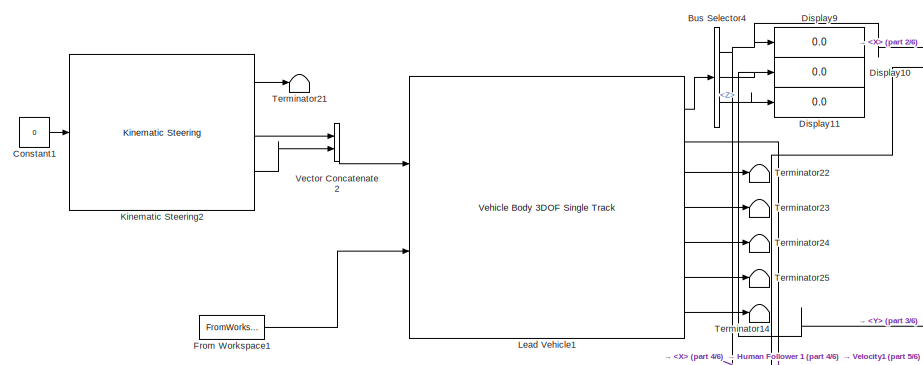
[diagram: root canvas - part 1/6, top left region]
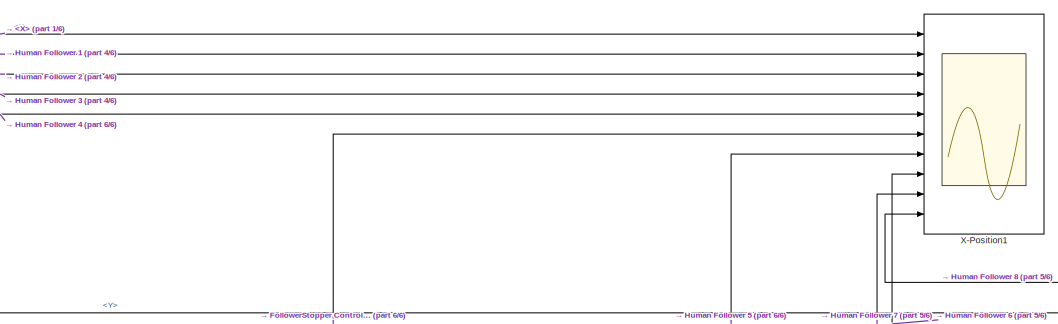
[diagram: root canvas - part 2/6, top center region]
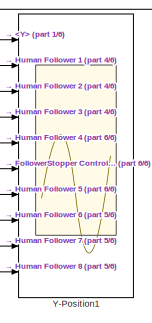
[diagram: root canvas - part 3/6, top right region]
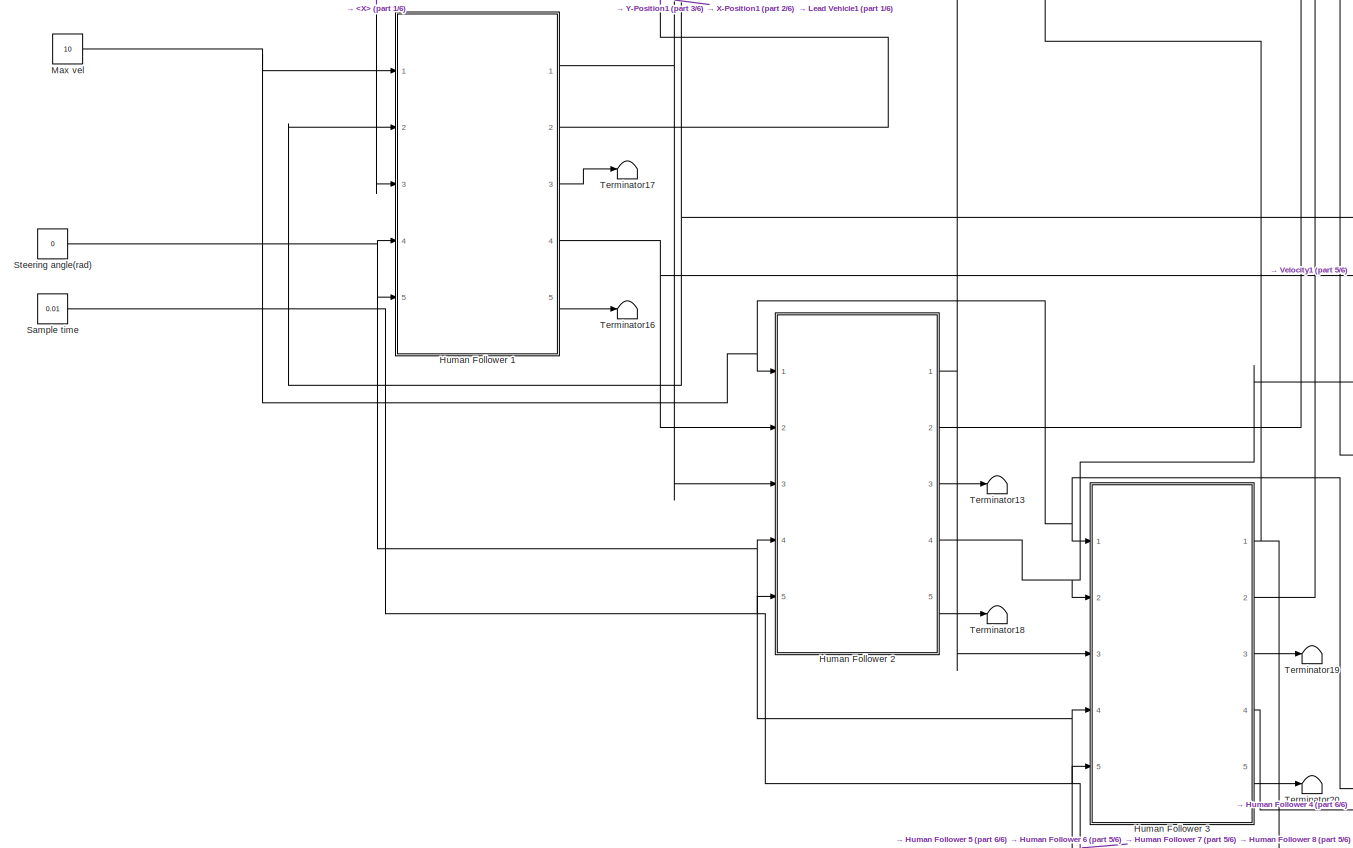
[diagram: root canvas - part 4/6, middle left region]
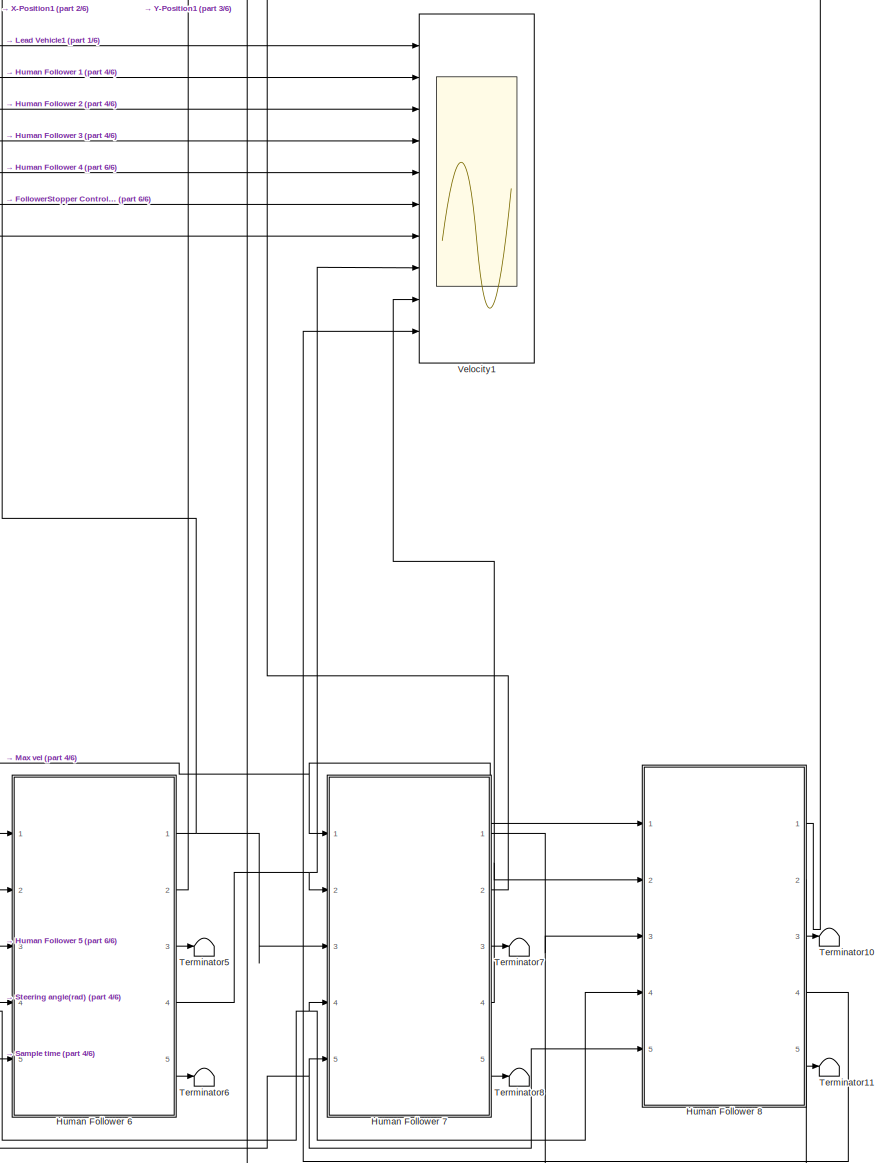
[diagram: root canvas - part 5/6, bottom right region]
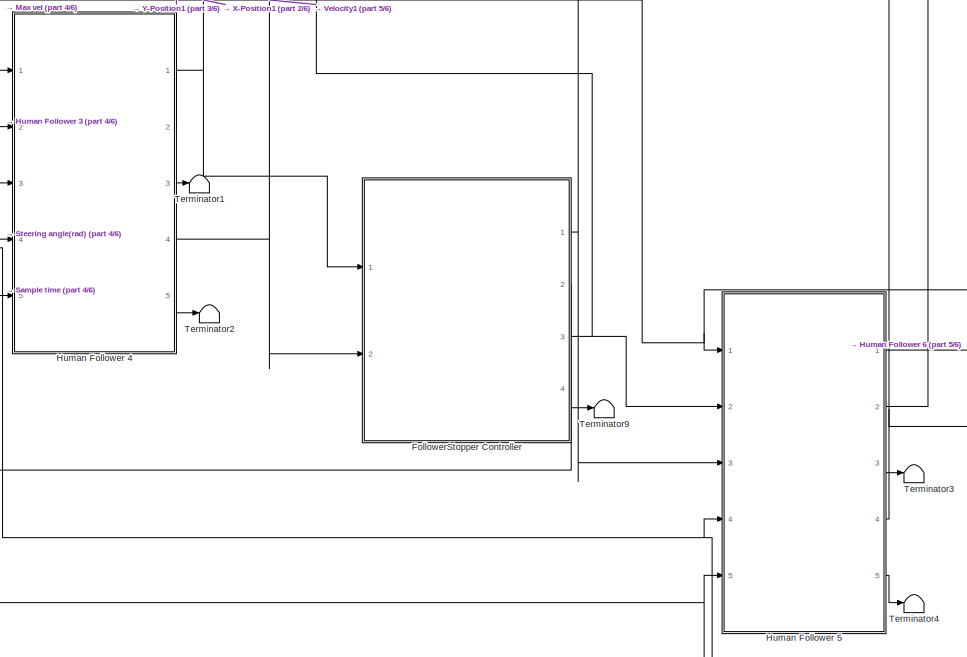
[diagram: root canvas - part 6/6, bottom center region]
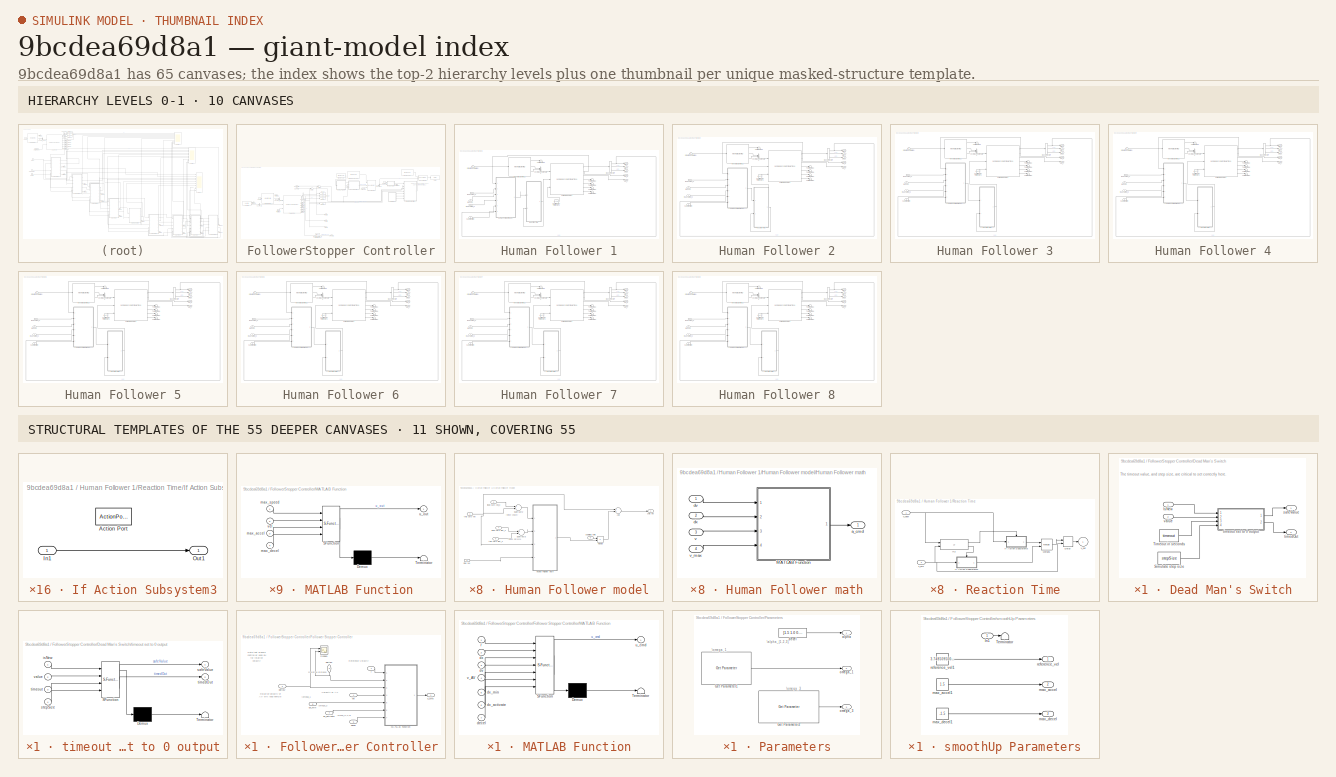
[diagram: thumbnail index - top-2 hierarchy levels (10 canvases) + 11 structural-template representatives of the remaining 55 canvases]
MODEL slx_9bcdea69d8a1
KIND model
CONFIG AbsTol = auto
CONFIG EnableMultiTasking = off
CONFIG FixedStep = 0.01
CONFIG MaxStep = auto
CONFIG MinStep = auto
CONFIG RelTol = 1e-3
CONFIG SampleTimeConstraint = Unconstrained
CONFIG Solver = FixedStepAuto
CONFIG SolverName = FixedStepAuto
CONFIG StartTime = 0.0
CONFIG StopTime = inf
BLOCK [BusSelector] Bus Selector4
  OutputAsBus = off
  OutputSignals = InertFrm.Geom.Disp.X,InertFrm.Geom.Disp.Y,InertFrm.Geom.Disp.Z
  Ports = [1, 3]
BLOCK [Constant] Constant1
  Value = 0
BLOCK [Display] Display10
  Decimation = 1
  Ports = [1]
BLOCK [Display] Display11
  Decimation = 1
  Ports = [1]
BLOCK [Display] Display9
  Decimation = 1
  Ports = [1]
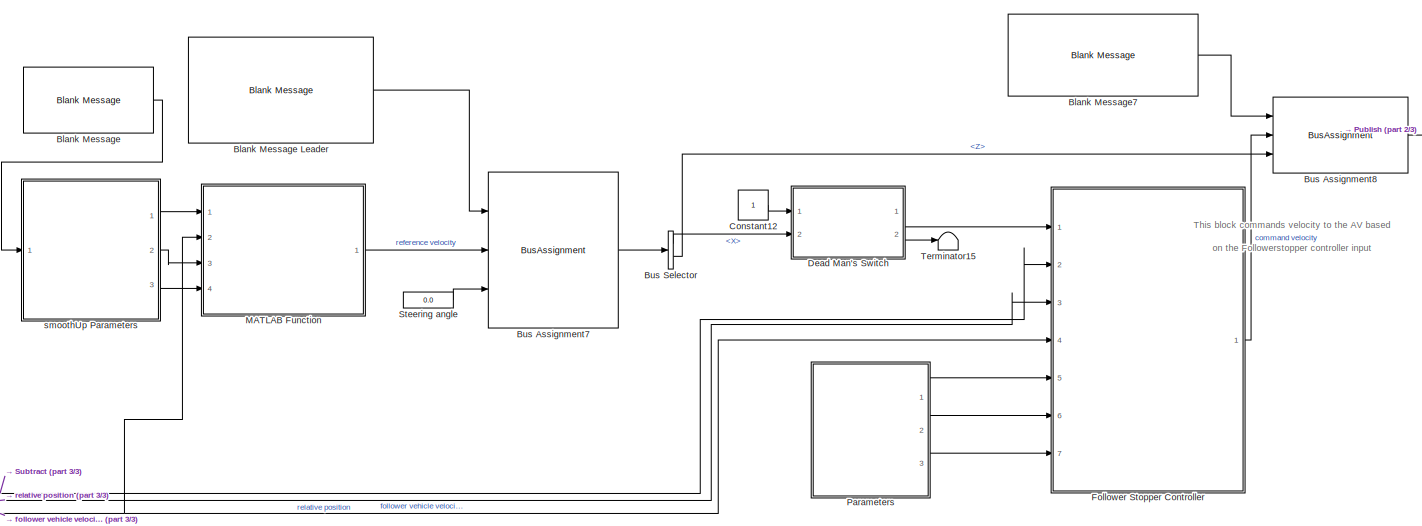
[diagram: FollowerStopper Controller - part 1/3, top right region]
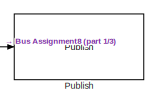
[diagram: FollowerStopper Controller - part 2/3, top right region]
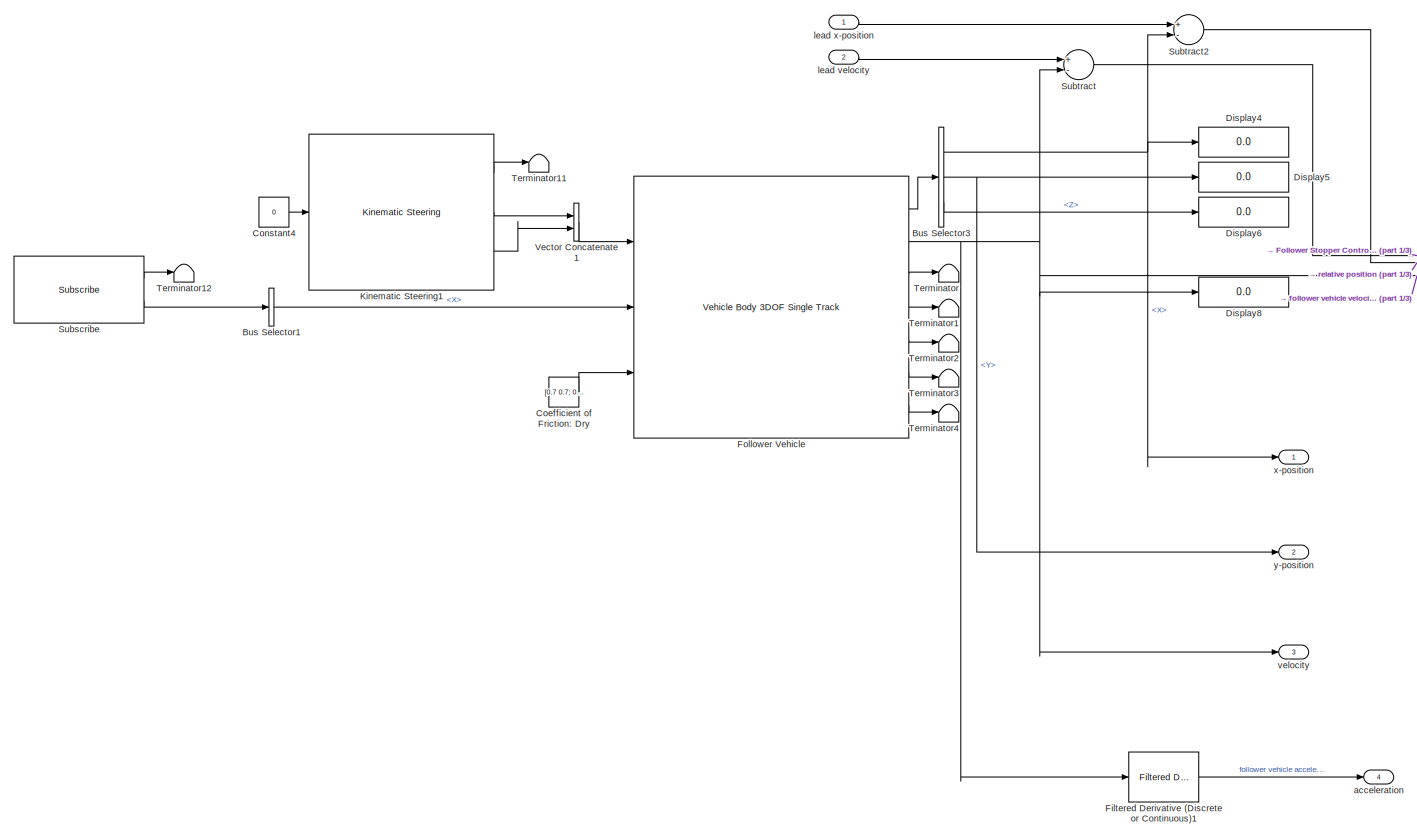
[diagram: FollowerStopper Controller - part 3/3, left side, full height]
BLOCK [SubSystem] FollowerStopper Controller
  Ports = [2, 4]
  RequestExecContextInheritance = off
BLOCK [Reference] FollowerStopper Controller/Blank Message  REF=robotlib/Blank Message
  Ports = [0, 1]
  SourceBlock = robotlib/Blank Message
  SourceProductBaseCode = RO
  SourceProductName = Robotics System Toolbox
  SourceType = ROS Blank Message
BLOCK [Reference] FollowerStopper Controller/Blank Message Leader  REF=robotlib/Blank Message
  Ports = [0, 1]
  SourceBlock = robotlib/Blank Message
  SourceProductBaseCode = RO
  SourceProductName = Robotics System Toolbox
  SourceType = ROS Blank Message
BLOCK [Reference] FollowerStopper Controller/Blank Message7  REF=robotlib/Blank Message
  Ports = [0, 1]
  SourceBlock = robotlib/Blank Message
  SourceProductBaseCode = RO
  SourceProductName = Robotics System Toolbox
  SourceType = ROS Blank Message
BLOCK [BusAssignment] FollowerStopper Controller/Bus Assignment7
  AssignedSignals = Linear.X,Angular.Z
  Ports = [3, 1]
BLOCK [BusAssignment] FollowerStopper Controller/Bus Assignment8
  AssignedSignals = Linear.X,Angular.Z
  Ports = [3, 1]
BLOCK [BusSelector] FollowerStopper Controller/Bus Selector
  OutputAsBus = off
  OutputSignals = Linear.X,Angular.Z
  Ports = [1, 2]
BLOCK [BusSelector] FollowerStopper Controller/Bus Selector1
  OutputAsBus = off
  OutputSignals = Linear.X
  Ports = [1, 1]
BLOCK [BusSelector] FollowerStopper Controller/Bus Selector3
  OutputAsBus = off
  OutputSignals = InertFrm.Geom.Disp.X,InertFrm.Geom.Disp.Y,InertFrm.Geom.Disp.Z
  Ports = [1, 3]
BLOCK [Constant] FollowerStopper Controller/Coefficient of Friction: Dry
  Value = [0.7 0.7; 0.7 0.7]
BLOCK [Constant] FollowerStopper Controller/Constant12
BLOCK [Constant] FollowerStopper Controller/Constant4
  Value = 0
BLOCK [SubSystem] FollowerStopper Controller/Dead Man's Switch
  Ports = [2, 2]
  RequestExecContextInheritance = off
  TreatAsAtomicUnit = on
BLOCK [Inport] FollowerStopper Controller/Dead Man's Switch/IsNew
  IconDisplay = Port number
BLOCK [Constant] FollowerStopper Controller/Dead Man's Switch/Simulate step size
  Value = stepSize
BLOCK [Constant] FollowerStopper Controller/Dead Man's Switch/Timeout in seconds
  Value = timeout
BLOCK [Outport] FollowerStopper Controller/Dead Man's Switch/safeValue
  IconDisplay = Port number
  InitialOutput = [0]
BLOCK [Outport] FollowerStopper Controller/Dead Man's Switch/timedOut
  IconDisplay = Port number
  InitialOutput = [0]
  Port = 2
BLOCK [SubSystem] FollowerStopper Controller/Dead Man's Switch/timeout set to 0 output
  ErrorFcn = Stateflow.Translate.translate
  PermitHierarchicalResolution = ExplicitOnly
  Ports = [4, 2]
  RequestExecContextInheritance = off
  SFBlockType = MATLAB Function
  TreatAsAtomicUnit = on
BLOCK [Demux] FollowerStopper Controller/Dead Man's Switch/timeout set to 0 output/ Demux 
  Outputs = 1
  Ports = [1, 1]
BLOCK [S-Function] FollowerStopper Controller/Dead Man's Switch/timeout set to 0 output/ SFunction 
  EnableBusSupport = on
  FunctionName = sf_sfun
  PortCounts = [4 3]
  Ports = [4, 3]
  SFcnIsStateOwnerBlock = off
  SFunctionDeploymentMode = off
  Tag = Stateflow S-Function line_CF1_FS 1
BLOCK [Terminator] FollowerStopper Controller/Dead Man's Switch/timeout set to 0 output/ Terminator 
BLOCK [Inport] FollowerStopper Controller/Dead Man's Switch/timeout set to 0 output/isNew
  IconDisplay = Port number
BLOCK [Outport] FollowerStopper Controller/Dead Man's Switch/timeout set to 0 output/safeValue
  IconDisplay = Port number
BLOCK [Inport] FollowerStopper Controller/Dead Man's Switch/timeout set to 0 output/stepSize
  IconDisplay = Port number
  Port = 4
BLOCK [Outport] FollowerStopper Controller/Dead Man's Switch/timeout set to 0 output/timedOut
  IconDisplay = Port number
  Port = 2
BLOCK [Inport] FollowerStopper Controller/Dead Man's Switch/timeout set to 0 output/timeout
  IconDisplay = Port number
  Port = 3
BLOCK [Inport] FollowerStopper Controller/Dead Man's Switch/timeout set to 0 output/value
  IconDisplay = Port number
  Port = 2
BLOCK [Inport] FollowerStopper Controller/Dead Man's Switch/value
  IconDisplay = Port number
  Port = 2
BLOCK [Display] FollowerStopper Controller/Display4
  Decimation = 1
  Ports = [1]
BLOCK [Display] FollowerStopper Controller/Display5
  Decimation = 1
  Ports = [1]
BLOCK [Display] FollowerStopper Controller/Display6
  Decimation = 1
  Ports = [1]
BLOCK [Display] FollowerStopper Controller/Display8
  Decimation = 1
  Ports = [1]
BLOCK [Reference] FollowerStopper Controller/Filtered Derivative (Discrete or Continuous)1  REF=peGeneralControl/Filtered Derivative
(Discrete or Continuous)
  Ports = [1, 1]
  SourceBlock = peGeneralControl/Filtered Derivative\n(Discrete or Continuous)
  SourceType = Filtered Derivative (Discrete or Continuous)
BLOCK [SubSystem] FollowerStopper Controller/Follower Stopper Controller
  Ports = [7, 1]
  RequestExecContextInheritance = off
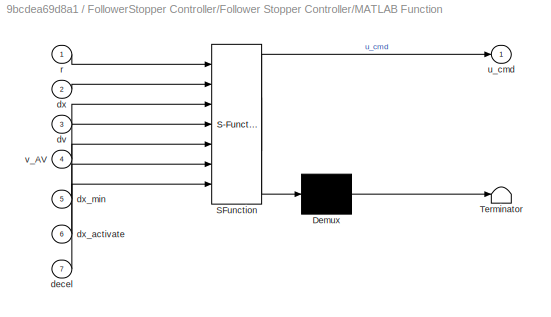
BLOCK [SubSystem] FollowerStopper Controller/Follower Stopper Controller/MATLAB Function
  ErrorFcn = Stateflow.Translate.translate
  PermitHierarchicalResolution = ExplicitOnly
  Ports = [7, 1]
  RequestExecContextInheritance = off
  SFBlockType = MATLAB Function
  TreatAsAtomicUnit = on
BLOCK [Demux] FollowerStopper Controller/Follower Stopper Controller/MATLAB Function/ Demux 
  Outputs = 1
  Ports = [1, 1]
BLOCK [S-Function] FollowerStopper Controller/Follower Stopper Controller/MATLAB Function/ SFunction 
  EnableBusSupport = on
  FunctionName = sf_sfun
  PortCounts = [7 2]
  Ports = [7, 2]
  SFcnIsStateOwnerBlock = off
  SFunctionDeploymentMode = off
  Tag = Stateflow S-Function line_CF1_FS 6
BLOCK [Terminator] FollowerStopper Controller/Follower Stopper Controller/MATLAB Function/ Terminator 
BLOCK [Inport] FollowerStopper Controller/Follower Stopper Controller/MATLAB Function/decel
  IconDisplay = Port number
  Port = 7
BLOCK [Inport] FollowerStopper Controller/Follower Stopper Controller/MATLAB Function/dv
  IconDisplay = Port number
  Port = 3
BLOCK [Inport] FollowerStopper Controller/Follower Stopper Controller/MATLAB Function/dx
  IconDisplay = Port number
  Port = 2
BLOCK [Inport] FollowerStopper Controller/Follower Stopper Controller/MATLAB Function/dx_activate
  IconDisplay = Port number
  Port = 6
BLOCK [Inport] FollowerStopper Controller/Follower Stopper Controller/MATLAB Function/dx_min
  IconDisplay = Port number
  Port = 5
BLOCK [Inport] FollowerStopper Controller/Follower Stopper Controller/MATLAB Function/r
  IconDisplay = Port number
BLOCK [Outport] FollowerStopper Controller/Follower Stopper Controller/MATLAB Function/u_cmd
  IconDisplay = Port number
BLOCK [Inport] FollowerStopper Controller/Follower Stopper Controller/MATLAB Function/v_AV
  IconDisplay = Port number
  Port = 4
BLOCK [Scope] FollowerStopper Controller/Follower Stopper Controller/Scope1
  Floating = off
  NumInputPorts = 2
  Ports = [2]
  ScopeSpecificationString = Simulink.scopes.TimeScopeBlockCfg('CurrentConfiguration', extmgr.ConfigurationSet(extmgr.Configuration('Core','General UI',true),extmgr.Configuration('Core','Source UI',true),extmgr.Configuration('Sources','WiredSimulink',true,'DataLoggingVariableName','ScopeData1'),extmgr.Configuration('Visuals','Time Domain',true),extmgr.Configuration('Tools','Plot Navigation',true),extmgr.Configuration('Tools',...<+40ch>
BLOCK [Inport] FollowerStopper Controller/Follower Stopper Controller/decel
  IconDisplay = Port number
  Port = 5
BLOCK [Inport] FollowerStopper Controller/Follower Stopper Controller/deltaV
  IconDisplay = Port number
  Port = 2
BLOCK [Inport] FollowerStopper Controller/Follower Stopper Controller/deltaX
  IconDisplay = Port number
  Port = 3
BLOCK [Inport] FollowerStopper Controller/Follower Stopper Controller/dx_activate
  IconDisplay = Port number
  Port = 7
BLOCK [Inport] FollowerStopper Controller/Follower Stopper Controller/dx_min
  IconDisplay = Port number
  Port = 6
BLOCK [Inport] FollowerStopper Controller/Follower Stopper Controller/r
  IconDisplay = Port number
BLOCK [Outport] FollowerStopper Controller/Follower Stopper Controller/u_cmd
  IconDisplay = Port number
BLOCK [Inport] FollowerStopper Controller/Follower Stopper Controller/vel
  IconDisplay = Port number
  Port = 4
BLOCK [Reference] FollowerStopper Controller/Follower Vehicle  REF=autolibshared/Vehicle Body 3DOF Single Track
  Ports = [3, 7]
  SourceBlock = autolibshared/Vehicle Body 3DOF Single Track
  SourceProductBaseCode = PW
  SourceProductName = Powertrain Blockset
  SourceType = Vehicle Body 3DOF Lateral
BLOCK [Reference] FollowerStopper Controller/Kinematic Steering1  REF=vehdynlibsteering/Kinematic Steering
  Ports = [1, 3]
  SourceBlock = vehdynlibsteering/Kinematic Steering
  SourceProductBaseCode = VE
  SourceProductName = Vehicle Dynamics Blockset
  SourceType = Kinematic Steering
BLOCK [SubSystem] FollowerStopper Controller/MATLAB Function
  ErrorFcn = Stateflow.Translate.translate
  PermitHierarchicalResolution = ExplicitOnly
  Ports = [4, 1]
  RequestExecContextInheritance = off
  SFBlockType = MATLAB Function
  TreatAsAtomicUnit = on
BLOCK [Demux] FollowerStopper Controller/MATLAB Function/ Demux 
  Outputs = 1
  Ports = [1, 1]
BLOCK [S-Function] FollowerStopper Controller/MATLAB Function/ SFunction 
  EnableBusSupport = on
  FunctionName = sf_sfun
  PortCounts = [4 2]
  Ports = [4, 2]
  SFcnIsStateOwnerBlock = off
  SFunctionDeploymentMode = off
  Tag = Stateflow S-Function line_CF1_FS 2
BLOCK [Terminator] FollowerStopper Controller/MATLAB Function/ Terminator 
BLOCK [Inport] FollowerStopper Controller/MATLAB Function/max_accel
  IconDisplay = Port number
  Port = 3
BLOCK [Inport] FollowerStopper Controller/MATLAB Function/max_decel
  IconDisplay = Port number
  Port = 4
BLOCK [Inport] FollowerStopper Controller/MATLAB Function/max_speed
  IconDisplay = Port number
BLOCK [Outport] FollowerStopper Controller/MATLAB Function/u_out
  IconDisplay = Port number
BLOCK [Inport] FollowerStopper Controller/MATLAB Function/vel
  IconDisplay = Port number
  Port = 2
BLOCK [SubSystem] FollowerStopper Controller/Parameters
  Ports = [0, 3]
  RequestExecContextInheritance = off
BLOCK [Reference] FollowerStopper Controller/Parameters/Get Parameter1  REF=robotlib/Get Parameter
  Ports = [0, 1]
  SourceBlock = robotlib/Get Parameter
  SourceProductBaseCode = RO
  SourceProductName = Robotics System Toolbox
  SourceType = ROS Get Parameter
BLOCK [Reference] FollowerStopper Controller/Parameters/Get Parameter2  REF=robotlib/Get Parameter
  Ports = [0, 1]
  SourceBlock = robotlib/Get Parameter
  SourceProductBaseCode = RO
  SourceProductName = Robotics System Toolbox
  SourceType = ROS Get Parameter
BLOCK [Outport] FollowerStopper Controller/Parameters/alpha
  IconDisplay = Port number
BLOCK [Constant] FollowerStopper Controller/Parameters/decel
  OutDataTypeStr = double
  SampleTime = -1
  Value = [1.5 1.0 0.5]
BLOCK [Outport] FollowerStopper Controller/Parameters/omega_1
  IconDisplay = Port number
  Port = 2
BLOCK [Outport] FollowerStopper Controller/Parameters/omega_3
  IconDisplay = Port number
  Port = 3
BLOCK [Reference] FollowerStopper Controller/Publish  REF=robotlib/Publish
  Ports = [1]
  SourceBlock = robotlib/Publish
  SourceProductBaseCode = RO
  SourceProductName = Robotics System Toolbox
  SourceType = ROS Publish
BLOCK [Constant] FollowerStopper Controller/Steering angle
  Value = 0.0
BLOCK [Reference] FollowerStopper Controller/Subscribe  REF=robotlib/Subscribe
  Ports = [0, 2]
  SourceBlock = robotlib/Subscribe
  SourceProductBaseCode = RO
  SourceProductName = Robotics System Toolbox
  SourceType = ROS Subscribe
BLOCK [Sum] FollowerStopper Controller/Subtract
  InputSameDT = off
  Inputs = +-
  OutDataTypeStr = Inherit: Inherit via internal rule
  Ports = [2, 1]
  SaturateOnIntegerOverflow = off
BLOCK [Sum] FollowerStopper Controller/Subtract2
  InputSameDT = off
  Inputs = +-
  OutDataTypeStr = Inherit: Inherit via internal rule
  Ports = [2, 1]
  SaturateOnIntegerOverflow = off
BLOCK [Terminator] FollowerStopper Controller/Terminator
BLOCK [Terminator] FollowerStopper Controller/Terminator1
BLOCK [Terminator] FollowerStopper Controller/Terminator11
BLOCK [Terminator] FollowerStopper Controller/Terminator12
BLOCK [Terminator] FollowerStopper Controller/Terminator15
BLOCK [Terminator] FollowerStopper Controller/Terminator2
BLOCK [Terminator] FollowerStopper Controller/Terminator3
BLOCK [Terminator] FollowerStopper Controller/Terminator4
BLOCK [Concatenate] FollowerStopper Controller/Vector Concatenate1
  Ports = [2, 1]
BLOCK [Outport] FollowerStopper Controller/acceleration
  IconDisplay = Port number
  Port = 4
BLOCK [Inport] FollowerStopper Controller/lead velocity
  IconDisplay = Port number
  Port = 2
BLOCK [Inport] FollowerStopper Controller/lead x-position
  IconDisplay = Port number
BLOCK [SubSystem] FollowerStopper Controller/smoothUp Parameters
  Ports = [1, 3]
  RequestExecContextInheritance = off
BLOCK [Inport] FollowerStopper Controller/smoothUp Parameters/In1
  IconDisplay = Port number
BLOCK [Terminator] FollowerStopper Controller/smoothUp Parameters/Terminator
BLOCK [Outport] FollowerStopper Controller/smoothUp Parameters/max_accel
  IconDisplay = Port number
  Port = 2
BLOCK [Constant] FollowerStopper Controller/smoothUp Parameters/max_accel1
  Value = 1.5
BLOCK [Outport] FollowerStopper Controller/smoothUp Parameters/max_decel
  IconDisplay = Port number
  Port = 3
BLOCK [Constant] FollowerStopper Controller/smoothUp Parameters/max_decel1
  Value = -1.5
BLOCK [Outport] FollowerStopper Controller/smoothUp Parameters/reference_vel
  IconDisplay = Port number
BLOCK [Constant] FollowerStopper Controller/smoothUp Parameters/reference_vel1
  Value = 3.748509500812156
BLOCK [Outport] FollowerStopper Controller/velocity
  IconDisplay = Port number
  Port = 3
BLOCK [Outport] FollowerStopper Controller/x-position
  IconDisplay = Port number
BLOCK [Outport] FollowerStopper Controller/y-position
  IconDisplay = Port number
  Port = 2
BLOCK [FromWorkspace] From Workspace1
  SampleTime = 0.1
  VariableName = vel_car_1
  ZeroCross = on
BLOCK [SubSystem] Human Follower 1
  Ports = [5, 5]
  RequestExecContextInheritance = off
BLOCK [BusSelector] Human Follower 1/Bus Selector7
  OutputAsBus = off
  OutputSignals = InertFrm.Cg.Disp.X,InertFrm.Cg.Disp.Y,InertFrm.Cg.Disp.Z
  Ports = [1, 3]
BLOCK [Constant] Human Follower 1/Coefficient of Friction: Dry1
  Value = [0.7 0.7; 0.7 0.7]
BLOCK [Reference] Human Follower 1/Follower Vehicle1  REF=autolibshared/Vehicle Body 3DOF Single Track
  Ports = [3, 7]
  SourceBlock = autolibshared/Vehicle Body 3DOF Single Track
  SourceProductBaseCode = PW
  SourceProductName = Powertrain Blockset
  SourceType = Vehicle Body 3DOF Lateral
BLOCK [SubSystem] Human Follower 1/Human Follower model
  Ports = [6, 1]
  RequestExecContextInheritance = off
BLOCK [Sum] Human Follower 1/Human Follower model/Add
  InputSameDT = off
  OutDataTypeStr = Inherit: Inherit via internal rule
  Ports = [2, 1]
  SaturateOnIntegerOverflow = off
BLOCK [SubSystem] Human Follower 1/Human Follower model/Human Follower math
  Ports = [4, 1]
  RequestExecContextInheritance = off
BLOCK [SubSystem] Human Follower 1/Human Follower model/Human Follower math/MATLAB Function
  ErrorFcn = Stateflow.Translate.translate
  PermitHierarchicalResolution = ExplicitOnly
  Ports = [4, 1]
  RequestExecContextInheritance = off
  SFBlockType = MATLAB Function
  TreatAsAtomicUnit = on
BLOCK [Demux] Human Follower 1/Human Follower model/Human Follower math/MATLAB Function/ Demux 
  Outputs = 1
  Ports = [1, 1]
BLOCK [S-Function] Human Follower 1/Human Follower model/Human Follower math/MATLAB Function/ SFunction 
  EnableBusSupport = on
  FunctionName = sf_sfun
  PortCounts = [4 2]
  Ports = [4, 2]
  SFcnIsStateOwnerBlock = off
  SFunctionDeploymentMode = off
  Tag = Stateflow S-Function line_CF1_FS 5
BLOCK [Terminator] Human Follower 1/Human Follower model/Human Follower math/MATLAB Function/ Terminator 
BLOCK [Outport] Human Follower 1/Human Follower model/Human Follower math/MATLAB Function/acceleration
  IconDisplay = Port number
BLOCK [Inport] Human Follower 1/Human Follower model/Human Follower math/MATLAB Function/dv
  IconDisplay = Port number
BLOCK [Inport] Human Follower 1/Human Follower model/Human Follower math/MATLAB Function/dx
  IconDisplay = Port number
  Port = 2
BLOCK [Inport] Human Follower 1/Human Follower model/Human Follower math/MATLAB Function/v
  IconDisplay = Port number
  Port = 3
BLOCK [Inport] Human Follower 1/Human Follower model/Human Follower math/MATLAB Function/v_max
  IconDisplay = Port number
  Port = 4
BLOCK [Outport] Human Follower 1/Human Follower model/Human Follower math/a_cmd
  IconDisplay = Port number
BLOCK [Inport] Human Follower 1/Human Follower model/Human Follower math/dv
  IconDisplay = Port number
BLOCK [Inport] Human Follower 1/Human Follower model/Human Follower math/dx
  IconDisplay = Port number
  Port = 2
BLOCK [Inport] Human Follower 1/Human Follower model/Human Follower math/v
  IconDisplay = Port number
  Port = 3
BLOCK [Inport] Human Follower 1/Human Follower model/Human Follower math/v_max
  IconDisplay = Port number
  Port = 4
BLOCK [Product] Human Follower 1/Human Follower model/Multiply
  InputSameDT = off
  OutDataTypeStr = Inherit: Inherit via internal rule
  Ports = [2, 1]
  RndMeth = Floor
  SaturateOnIntegerOverflow = off
BLOCK [Sum] Human Follower 1/Human Follower model/Subtract2
  InputSameDT = off
  Inputs = +-
  OutDataTypeStr = Inherit: Inherit via internal rule
  Ports = [2, 1]
  SaturateOnIntegerOverflow = off
BLOCK [Sum] Human Follower 1/Human Follower model/Subtract3
  InputSameDT = off
  Inputs = +-
  OutDataTypeStr = Inherit: Inherit via internal rule
  Ports = [2, 1]
  SaturateOnIntegerOverflow = off
BLOCK [Outport] Human Follower 1/Human Follower model/cmd Vel
  IconDisplay = Port number
BLOCK [Inport] Human Follower 1/Human Follower model/lead cars dist_x
  IconDisplay = Port number
  Port = 4
BLOCK [Inport] Human Follower 1/Human Follower model/lead cars vel_x
  IconDisplay = Port number
  Port = 2
BLOCK [Inport] Human Follower 1/Human Follower model/max vel
  IconDisplay = Port number
  Port = 3
BLOCK [Inport] Human Follower 1/Human Follower model/sampling time
  IconDisplay = Port number
  Port = 6
BLOCK [Inport] Human Follower 1/Human Follower model/this cars dist_x
  IconDisplay = Port number
  Port = 5
BLOCK [Inport] Human Follower 1/Human Follower model/this cars vel
  IconDisplay = Port number
BLOCK [Reference] Human Follower 1/Kinematic Steering3  REF=vehdynlibsteering/Kinematic Steering
  Ports = [1, 3]
  SourceBlock = vehdynlibsteering/Kinematic Steering
  SourceProductBaseCode = VE
  SourceProductName = Vehicle Dynamics Blockset
  SourceType = Kinematic Steering
BLOCK [SubSystem] Human Follower 1/Reaction Time
  Ports = [2, 1]
  RequestExecContextInheritance = off
BLOCK [Delay] Human Follower 1/Reaction Time/Delay
  DelayLength = 3
  InitialConditionSource = Input port
  InputPortMap = u0,p4
  Ports = [2, 1]
BLOCK [SubSystem] Human Follower 1/Reaction Time/If Action Subsystem3
  Ports = [1, 1, 0, 0, 0, 0, 0, 1]
  RequestExecContextInheritance = off
  TreatAsAtomicUnit = on
BLOCK [ActionPort] Human Follower 1/Reaction Time/If Action Subsystem3/Action Port
  ActionType = then
BLOCK [Inport] Human Follower 1/Reaction Time/If Action Subsystem3/In1
  IconDisplay = Port number
BLOCK [Outport] Human Follower 1/Reaction Time/If Action Subsystem3/Out1
  IconDisplay = Port number
BLOCK [SubSystem] Human Follower 1/Reaction Time/If Action Subsystem5
  Ports = [1, 1, 0, 0, 0, 0, 0, 1]
  RequestExecContextInheritance = off
  TreatAsAtomicUnit = on
BLOCK [ActionPort] Human Follower 1/Reaction Time/If Action Subsystem5/Action Port
  ActionType = else
BLOCK [Inport] Human Follower 1/Reaction Time/If Action Subsystem5/In1
  IconDisplay = Port number
BLOCK [Outport] Human Follower 1/Reaction Time/If Action Subsystem5/Out1
  IconDisplay = Port number
BLOCK [If] Human Follower 1/Reaction Time/If2
  IfExpression = u2 ~= u1
  NumInputs = 2
  Ports = [2, 2]
BLOCK [Merge] Human Follower 1/Reaction Time/Merge1
  Ports = [2, 1]
BLOCK [Inport] Human Follower 1/Reaction Time/v_new
  IconDisplay = Port number
BLOCK [Inport] Human Follower 1/Reaction Time/v_old
  IconDisplay = Port number
  Port = 2
BLOCK [Outport] Human Follower 1/Reaction Time/v_out
  IconDisplay = Port number
BLOCK [Terminator] Human Follower 1/Terminator13
BLOCK [Terminator] Human Follower 1/Terminator16
BLOCK [Terminator] Human Follower 1/Terminator18
BLOCK [Terminator] Human Follower 1/Terminator19
BLOCK [Terminator] Human Follower 1/Terminator20
BLOCK [Concatenate] Human Follower 1/Vector Concatenate4
  Ports = [2, 1]
BLOCK [Outport] Human Follower 1/dist_x
  IconDisplay = Port number
BLOCK [Outport] Human Follower 1/dist_y
  IconDisplay = Port number
  Port = 2
BLOCK [Outport] Human Follower 1/dist_z
  IconDisplay = Port number
  Port = 3
BLOCK [Inport] Human Follower 1/lead car dist_x
  IconDisplay = Port number
  Port = 3
BLOCK [Inport] Human Follower 1/lead car vel_x
  IconDisplay = Port number
  Port = 2
BLOCK [Inport] Human Follower 1/max vel
  IconDisplay = Port number
BLOCK [Inport] Human Follower 1/sampling time
  IconDisplay = Port number
  Port = 5
BLOCK [Inport] Human Follower 1/stearing angle(rad)
  IconDisplay = Port number
  Port = 4
BLOCK [Outport] Human Follower 1/vel_x
  IconDisplay = Port number
  Port = 4
BLOCK [Outport] Human Follower 1/vel_y
  IconDisplay = Port number
  Port = 5
BLOCK [SubSystem] Human Follower 2
  Ports = [5, 5]
  RequestExecContextInheritance = off
BLOCK [BusSelector] Human Follower 2/Bus Selector7
  OutputAsBus = off
  OutputSignals = InertFrm.Cg.Disp.X,InertFrm.Cg.Disp.Y,InertFrm.Cg.Disp.Z
  Ports = [1, 3]
BLOCK [Constant] Human Follower 2/Coefficient of Friction: Dry1
  Value = [0.7 0.7; 0.7 0.7]
BLOCK [Reference] Human Follower 2/Follower Vehicle1  REF=autolibshared/Vehicle Body 3DOF Single Track
  Ports = [3, 7]
  SourceBlock = autolibshared/Vehicle Body 3DOF Single Track
  SourceProductBaseCode = PW
  SourceProductName = Powertrain Blockset
  SourceType = Vehicle Body 3DOF Lateral
BLOCK [SubSystem] Human Follower 2/Human Follower model
  Ports = [6, 1]
  RequestExecContextInheritance = off
BLOCK [Sum] Human Follower 2/Human Follower model/Add
  InputSameDT = off
  OutDataTypeStr = Inherit: Inherit via internal rule
  Ports = [2, 1]
  SaturateOnIntegerOverflow = off
BLOCK [SubSystem] Human Follower 2/Human Follower model/Human Follower math
  Ports = [4, 1]
  RequestExecContextInheritance = off
BLOCK [SubSystem] Human Follower 2/Human Follower model/Human Follower math/MATLAB Function
  ErrorFcn = Stateflow.Translate.translate
  PermitHierarchicalResolution = ExplicitOnly
  Ports = [4, 1]
  RequestExecContextInheritance = off
  SFBlockType = MATLAB Function
  TreatAsAtomicUnit = on
BLOCK [Demux] Human Follower 2/Human Follower model/Human Follower math/MATLAB Function/ Demux 
  Outputs = 1
  Ports = [1, 1]
BLOCK [S-Function] Human Follower 2/Human Follower model/Human Follower math/MATLAB Function/ SFunction 
  EnableBusSupport = on
  FunctionName = sf_sfun
  PortCounts = [4 2]
  Ports = [4, 2]
  SFcnIsStateOwnerBlock = off
  SFunctionDeploymentMode = off
  Tag = Stateflow S-Function line_CF1_FS 3
BLOCK [Terminator] Human Follower 2/Human Follower model/Human Follower math/MATLAB Function/ Terminator 
BLOCK [Outport] Human Follower 2/Human Follower model/Human Follower math/MATLAB Function/acceleration
  IconDisplay = Port number
BLOCK [Inport] Human Follower 2/Human Follower model/Human Follower math/MATLAB Function/dv
  IconDisplay = Port number
BLOCK [Inport] Human Follower 2/Human Follower model/Human Follower math/MATLAB Function/dx
  IconDisplay = Port number
  Port = 2
BLOCK [Inport] Human Follower 2/Human Follower model/Human Follower math/MATLAB Function/v
  IconDisplay = Port number
  Port = 3
BLOCK [Inport] Human Follower 2/Human Follower model/Human Follower math/MATLAB Function/v_max
  IconDisplay = Port number
  Port = 4
BLOCK [Outport] Human Follower 2/Human Follower model/Human Follower math/a_cmd
  IconDisplay = Port number
BLOCK [Inport] Human Follower 2/Human Follower model/Human Follower math/dv
  IconDisplay = Port number
BLOCK [Inport] Human Follower 2/Human Follower model/Human Follower math/dx
  IconDisplay = Port number
  Port = 2
BLOCK [Inport] Human Follower 2/Human Follower model/Human Follower math/v
  IconDisplay = Port number
  Port = 3
BLOCK [Inport] Human Follower 2/Human Follower model/Human Follower math/v_max
  IconDisplay = Port number
  Port = 4
BLOCK [Product] Human Follower 2/Human Follower model/Multiply
  InputSameDT = off
  OutDataTypeStr = Inherit: Inherit via internal rule
  Ports = [2, 1]
  RndMeth = Floor
  SaturateOnIntegerOverflow = off
BLOCK [Sum] Human Follower 2/Human Follower model/Subtract2
  InputSameDT = off
  Inputs = +-
  OutDataTypeStr = Inherit: Inherit via internal rule
  Ports = [2, 1]
  SaturateOnIntegerOverflow = off
BLOCK [Sum] Human Follower 2/Human Follower model/Subtract3
  InputSameDT = off
  Inputs = +-
  OutDataTypeStr = Inherit: Inherit via internal rule
  Ports = [2, 1]
  SaturateOnIntegerOverflow = off
BLOCK [Outport] Human Follower 2/Human Follower model/cmd Vel
  IconDisplay = Port number
BLOCK [Inport] Human Follower 2/Human Follower model/lead cars dist_x
  IconDisplay = Port number
  Port = 4
BLOCK [Inport] Human Follower 2/Human Follower model/lead cars vel_x
  IconDisplay = Port number
  Port = 2
BLOCK [Inport] Human Follower 2/Human Follower model/max vel
  IconDisplay = Port number
  Port = 3
BLOCK [Inport] Human Follower 2/Human Follower model/sampling time
  IconDisplay = Port number
  Port = 6
BLOCK [Inport] Human Follower 2/Human Follower model/this cars dist_x
  IconDisplay = Port number
  Port = 5
BLOCK [Inport] Human Follower 2/Human Follower model/this cars vel
  IconDisplay = Port number
BLOCK [Reference] Human Follower 2/Kinematic Steering3  REF=vehdynlibsteering/Kinematic Steering
  Ports = [1, 3]
  SourceBlock = vehdynlibsteering/Kinematic Steering
  SourceProductBaseCode = VE
  SourceProductName = Vehicle Dynamics Blockset
  SourceType = Kinematic Steering
BLOCK [SubSystem] Human Follower 2/Reaction Time
  Ports = [2, 1]
  RequestExecContextInheritance = off
BLOCK [Delay] Human Follower 2/Reaction Time/Delay
  DelayLength = 3
  InitialCondition = 0
  InitialConditionSource = Input port
  InputPortMap = u0,p4
  Ports = [2, 1]
BLOCK [SubSystem] Human Follower 2/Reaction Time/If Action Subsystem3
  Ports = [1, 1, 0, 0, 0, 0, 0, 1]
  RequestExecContextInheritance = off
  TreatAsAtomicUnit = on
BLOCK [ActionPort] Human Follower 2/Reaction Time/If Action Subsystem3/Action Port
  ActionType = then
BLOCK [Inport] Human Follower 2/Reaction Time/If Action Subsystem3/In1
  IconDisplay = Port number
BLOCK [Outport] Human Follower 2/Reaction Time/If Action Subsystem3/Out1
  IconDisplay = Port number
BLOCK [SubSystem] Human Follower 2/Reaction Time/If Action Subsystem5
  Ports = [1, 1, 0, 0, 0, 0, 0, 1]
  RequestExecContextInheritance = off
  TreatAsAtomicUnit = on
BLOCK [ActionPort] Human Follower 2/Reaction Time/If Action Subsystem5/Action Port
  ActionType = else
BLOCK [Inport] Human Follower 2/Reaction Time/If Action Subsystem5/In1
  IconDisplay = Port number
BLOCK [Outport] Human Follower 2/Reaction Time/If Action Subsystem5/Out1
  IconDisplay = Port number
BLOCK [If] Human Follower 2/Reaction Time/If2
  IfExpression = u2 ~= u1
  NumInputs = 2
  Ports = [2, 2]
BLOCK [Merge] Human Follower 2/Reaction Time/Merge1
  Ports = [2, 1]
BLOCK [Inport] Human Follower 2/Reaction Time/v_new
  IconDisplay = Port number
BLOCK [Inport] Human Follower 2/Reaction Time/v_old
  IconDisplay = Port number
  Port = 2
BLOCK [Outport] Human Follower 2/Reaction Time/v_out
  IconDisplay = Port number
BLOCK [Terminator] Human Follower 2/Terminator13
BLOCK [Terminator] Human Follower 2/Terminator16
BLOCK [Terminator] Human Follower 2/Terminator18
BLOCK [Terminator] Human Follower 2/Terminator19
BLOCK [Terminator] Human Follower 2/Terminator20
BLOCK [Concatenate] Human Follower 2/Vector Concatenate4
  Ports = [2, 1]
BLOCK [Outport] Human Follower 2/dist_x
  IconDisplay = Port number
BLOCK [Outport] Human Follower 2/dist_y
  IconDisplay = Port number
  Port = 2
BLOCK [Outport] Human Follower 2/dist_z
  IconDisplay = Port number
  Port = 3
BLOCK [Inport] Human Follower 2/lead car dist_x
  IconDisplay = Port number
  Port = 3
BLOCK [Inport] Human Follower 2/lead car vel_x
  IconDisplay = Port number
  Port = 2
BLOCK [Inport] Human Follower 2/max vel
  IconDisplay = Port number
BLOCK [Inport] Human Follower 2/sampling time
  IconDisplay = Port number
  Port = 5
BLOCK [Inport] Human Follower 2/stearing angle(rad)
  IconDisplay = Port number
  Port = 4
BLOCK [Outport] Human Follower 2/vel_x
  IconDisplay = Port number
  Port = 4
BLOCK [Outport] Human Follower 2/vel_y
  IconDisplay = Port number
  Port = 5
BLOCK [SubSystem] Human Follower 3
  Ports = [5, 5]
  RequestExecContextInheritance = off
BLOCK [BusSelector] Human Follower 3/Bus Selector7
  OutputAsBus = off
  OutputSignals = InertFrm.Cg.Disp.X,InertFrm.Cg.Disp.Y,InertFrm.Cg.Disp.Z
  Ports = [1, 3]
BLOCK [Constant] Human Follower 3/Coefficient of Friction: Dry1
  Value = [0.7 0.7; 0.7 0.7]
BLOCK [Reference] Human Follower 3/Follower Vehicle1  REF=autolibshared/Vehicle Body 3DOF Single Track
  Ports = [3, 7]
  SourceBlock = autolibshared/Vehicle Body 3DOF Single Track
  SourceProductBaseCode = PW
  SourceProductName = Powertrain Blockset
  SourceType = Vehicle Body 3DOF Lateral
BLOCK [SubSystem] Human Follower 3/Human Follower model
  Ports = [6, 1]
  RequestExecContextInheritance = off
BLOCK [Sum] Human Follower 3/Human Follower model/Add
  InputSameDT = off
  OutDataTypeStr = Inherit: Inherit via internal rule
  Ports = [2, 1]
  SaturateOnIntegerOverflow = off
BLOCK [SubSystem] Human Follower 3/Human Follower model/Human Follower math
  Ports = [4, 1]
  RequestExecContextInheritance = off
BLOCK [SubSystem] Human Follower 3/Human Follower model/Human Follower math/MATLAB Function
  ErrorFcn = Stateflow.Translate.translate
  PermitHierarchicalResolution = ExplicitOnly
  Ports = [4, 1]
  RequestExecContextInheritance = off
  SFBlockType = MATLAB Function
  TreatAsAtomicUnit = on
BLOCK [Demux] Human Follower 3/Human Follower model/Human Follower math/MATLAB Function/ Demux 
  Outputs = 1
  Ports = [1, 1]
BLOCK [S-Function] Human Follower 3/Human Follower model/Human Follower math/MATLAB Function/ SFunction 
  EnableBusSupport = on
  FunctionName = sf_sfun
  PortCounts = [4 2]
  Ports = [4, 2]
  SFcnIsStateOwnerBlock = off
  SFunctionDeploymentMode = off
  Tag = Stateflow S-Function line_CF1_FS 4
BLOCK [Terminator] Human Follower 3/Human Follower model/Human Follower math/MATLAB Function/ Terminator 
BLOCK [Outport] Human Follower 3/Human Follower model/Human Follower math/MATLAB Function/acceleration
  IconDisplay = Port number
BLOCK [Inport] Human Follower 3/Human Follower model/Human Follower math/MATLAB Function/dv
  IconDisplay = Port number
BLOCK [Inport] Human Follower 3/Human Follower model/Human Follower math/MATLAB Function/dx
  IconDisplay = Port number
  Port = 2
BLOCK [Inport] Human Follower 3/Human Follower model/Human Follower math/MATLAB Function/v
  IconDisplay = Port number
  Port = 3
BLOCK [Inport] Human Follower 3/Human Follower model/Human Follower math/MATLAB Function/v_max
  IconDisplay = Port number
  Port = 4
BLOCK [Outport] Human Follower 3/Human Follower model/Human Follower math/a_cmd
  IconDisplay = Port number
BLOCK [Inport] Human Follower 3/Human Follower model/Human Follower math/dv
  IconDisplay = Port number
BLOCK [Inport] Human Follower 3/Human Follower model/Human Follower math/dx
  IconDisplay = Port number
  Port = 2
BLOCK [Inport] Human Follower 3/Human Follower model/Human Follower math/v
  IconDisplay = Port number
  Port = 3
BLOCK [Inport] Human Follower 3/Human Follower model/Human Follower math/v_max
  IconDisplay = Port number
  Port = 4
BLOCK [Product] Human Follower 3/Human Follower model/Multiply
  InputSameDT = off
  OutDataTypeStr = Inherit: Inherit via internal rule
  Ports = [2, 1]
  RndMeth = Floor
  SaturateOnIntegerOverflow = off
BLOCK [Sum] Human Follower 3/Human Follower model/Subtract2
  InputSameDT = off
  Inputs = +-
  OutDataTypeStr = Inherit: Inherit via internal rule
  Ports = [2, 1]
  SaturateOnIntegerOverflow = off
BLOCK [Sum] Human Follower 3/Human Follower model/Subtract3
  InputSameDT = off
  Inputs = +-
  OutDataTypeStr = Inherit: Inherit via internal rule
  Ports = [2, 1]
  SaturateOnIntegerOverflow = off
BLOCK [Outport] Human Follower 3/Human Follower model/cmd Vel
  IconDisplay = Port number
BLOCK [Inport] Human Follower 3/Human Follower model/lead cars dist_x
  IconDisplay = Port number
  Port = 4
BLOCK [Inport] Human Follower 3/Human Follower model/lead cars vel_x
  IconDisplay = Port number
  Port = 2
BLOCK [Inport] Human Follower 3/Human Follower model/max vel
  IconDisplay = Port number
  Port = 3
BLOCK [Inport] Human Follower 3/Human Follower model/sampling time
  IconDisplay = Port number
  Port = 6
BLOCK [Inport] Human Follower 3/Human Follower model/this cars dist_x
  IconDisplay = Port number
  Port = 5
BLOCK [Inport] Human Follower 3/Human Follower model/this cars vel
  IconDisplay = Port number
BLOCK [Reference] Human Follower 3/Kinematic Steering3  REF=vehdynlibsteering/Kinematic Steering
  Ports = [1, 3]
  SourceBlock = vehdynlibsteering/Kinematic Steering
  SourceProductBaseCode = VE
  SourceProductName = Vehicle Dynamics Blockset
  SourceType = Kinematic Steering
BLOCK [SubSystem] Human Follower 3/Reaction Time
  Ports = [2, 1]
  RequestExecContextInheritance = off
BLOCK [Delay] Human Follower 3/Reaction Time/Delay
  DelayLength = 3
  InitialConditionSource = Input port
  InputPortMap = u0,p4
  Ports = [2, 1]
BLOCK [SubSystem] Human Follower 3/Reaction Time/If Action Subsystem3
  Ports = [1, 1, 0, 0, 0, 0, 0, 1]
  RequestExecContextInheritance = off
  TreatAsAtomicUnit = on
BLOCK [ActionPort] Human Follower 3/Reaction Time/If Action Subsystem3/Action Port
  ActionType = then
BLOCK [Inport] Human Follower 3/Reaction Time/If Action Subsystem3/In1
  IconDisplay = Port number
BLOCK [Outport] Human Follower 3/Reaction Time/If Action Subsystem3/Out1
  IconDisplay = Port number
BLOCK [SubSystem] Human Follower 3/Reaction Time/If Action Subsystem5
  Ports = [1, 1, 0, 0, 0, 0, 0, 1]
  RequestExecContextInheritance = off
  TreatAsAtomicUnit = on
BLOCK [ActionPort] Human Follower 3/Reaction Time/If Action Subsystem5/Action Port
  ActionType = else
BLOCK [Inport] Human Follower 3/Reaction Time/If Action Subsystem5/In1
  IconDisplay = Port number
BLOCK [Outport] Human Follower 3/Reaction Time/If Action Subsystem5/Out1
  IconDisplay = Port number
BLOCK [If] Human Follower 3/Reaction Time/If2
  IfExpression = u2 ~= u1
  NumInputs = 2
  Ports = [2, 2]
BLOCK [Merge] Human Follower 3/Reaction Time/Merge1
  Ports = [2, 1]
BLOCK [Inport] Human Follower 3/Reaction Time/v_new
  IconDisplay = Port number
BLOCK [Inport] Human Follower 3/Reaction Time/v_old
  IconDisplay = Port number
  Port = 2
BLOCK [Outport] Human Follower 3/Reaction Time/v_out
  IconDisplay = Port number
BLOCK [Terminator] Human Follower 3/Terminator13
BLOCK [Terminator] Human Follower 3/Terminator16
BLOCK [Terminator] Human Follower 3/Terminator18
BLOCK [Terminator] Human Follower 3/Terminator19
BLOCK [Terminator] Human Follower 3/Terminator20
BLOCK [Concatenate] Human Follower 3/Vector Concatenate4
  Ports = [2, 1]
BLOCK [Outport] Human Follower 3/dist_x
  IconDisplay = Port number
BLOCK [Outport] Human Follower 3/dist_y
  IconDisplay = Port number
  Port = 2
BLOCK [Outport] Human Follower 3/dist_z
  IconDisplay = Port number
  Port = 3
BLOCK [Inport] Human Follower 3/lead car dist_x
  IconDisplay = Port number
  Port = 3
BLOCK [Inport] Human Follower 3/lead car vel_x
  IconDisplay = Port number
  Port = 2
BLOCK [Inport] Human Follower 3/max vel
  IconDisplay = Port number
BLOCK [Inport] Human Follower 3/sampling time
  IconDisplay = Port number
  Port = 5
BLOCK [Inport] Human Follower 3/stearing angle(rad)
  IconDisplay = Port number
  Port = 4
BLOCK [Outport] Human Follower 3/vel_x
  IconDisplay = Port number
  Port = 4
BLOCK [Outport] Human Follower 3/vel_y
  IconDisplay = Port number
  Port = 5
BLOCK [SubSystem] Human Follower 4
  Ports = [5, 5]
  RequestExecContextInheritance = off
BLOCK [BusSelector] Human Follower 4/Bus Selector7
  OutputAsBus = off
  OutputSignals = InertFrm.Cg.Disp.X,InertFrm.Cg.Disp.Y,InertFrm.Cg.Disp.Z
  Ports = [1, 3]
BLOCK [Constant] Human Follower 4/Coefficient of Friction: Dry1
  Value = [0.7 0.7; 0.7 0.7]
BLOCK [Reference] Human Follower 4/Follower Vehicle1  REF=autolibshared/Vehicle Body 3DOF Single Track
  Ports = [3, 7]
  SourceBlock = autolibshared/Vehicle Body 3DOF Single Track
  SourceProductBaseCode = PW
  SourceProductName = Powertrain Blockset
  SourceType = Vehicle Body 3DOF Lateral
BLOCK [SubSystem] Human Follower 4/Human Follower model
  Ports = [6, 1]
  RequestExecContextInheritance = off
BLOCK [Sum] Human Follower 4/Human Follower model/Add
  InputSameDT = off
  OutDataTypeStr = Inherit: Inherit via internal rule
  Ports = [2, 1]
  SaturateOnIntegerOverflow = off
BLOCK [SubSystem] Human Follower 4/Human Follower model/Human Follower math
  Ports = [4, 1]
  RequestExecContextInheritance = off
BLOCK [SubSystem] Human Follower 4/Human Follower model/Human Follower math/MATLAB Function
  ErrorFcn = Stateflow.Translate.translate
  PermitHierarchicalResolution = ExplicitOnly
  Ports = [4, 1]
  RequestExecContextInheritance = off
  SFBlockType = MATLAB Function
  TreatAsAtomicUnit = on
BLOCK [Demux] Human Follower 4/Human Follower model/Human Follower math/MATLAB Function/ Demux 
  Outputs = 1
  Ports = [1, 1]
BLOCK [S-Function] Human Follower 4/Human Follower model/Human Follower math/MATLAB Function/ SFunction 
  EnableBusSupport = on
  FunctionName = sf_sfun
  PortCounts = [4 2]
  Ports = [4, 2]
  SFcnIsStateOwnerBlock = off
  SFunctionDeploymentMode = off
  Tag = Stateflow S-Function line_CF1_FS 7
BLOCK [Terminator] Human Follower 4/Human Follower model/Human Follower math/MATLAB Function/ Terminator 
BLOCK [Outport] Human Follower 4/Human Follower model/Human Follower math/MATLAB Function/acceleration
  IconDisplay = Port number
BLOCK [Inport] Human Follower 4/Human Follower model/Human Follower math/MATLAB Function/dv
  IconDisplay = Port number
BLOCK [Inport] Human Follower 4/Human Follower model/Human Follower math/MATLAB Function/dx
  IconDisplay = Port number
  Port = 2
BLOCK [Inport] Human Follower 4/Human Follower model/Human Follower math/MATLAB Function/v
  IconDisplay = Port number
  Port = 3
BLOCK [Inport] Human Follower 4/Human Follower model/Human Follower math/MATLAB Function/v_max
  IconDisplay = Port number
  Port = 4
BLOCK [Outport] Human Follower 4/Human Follower model/Human Follower math/a_cmd
  IconDisplay = Port number
BLOCK [Inport] Human Follower 4/Human Follower model/Human Follower math/dv
  IconDisplay = Port number
BLOCK [Inport] Human Follower 4/Human Follower model/Human Follower math/dx
  IconDisplay = Port number
  Port = 2
BLOCK [Inport] Human Follower 4/Human Follower model/Human Follower math/v
  IconDisplay = Port number
  Port = 3
BLOCK [Inport] Human Follower 4/Human Follower model/Human Follower math/v_max
  IconDisplay = Port number
  Port = 4
BLOCK [Product] Human Follower 4/Human Follower model/Multiply
  InputSameDT = off
  OutDataTypeStr = Inherit: Inherit via internal rule
  Ports = [2, 1]
  RndMeth = Floor
  SaturateOnIntegerOverflow = off
BLOCK [Sum] Human Follower 4/Human Follower model/Subtract2
  InputSameDT = off
  Inputs = +-
  OutDataTypeStr = Inherit: Inherit via internal rule
  Ports = [2, 1]
  SaturateOnIntegerOverflow = off
BLOCK [Sum] Human Follower 4/Human Follower model/Subtract3
  InputSameDT = off
  Inputs = +-
  OutDataTypeStr = Inherit: Inherit via internal rule
  Ports = [2, 1]
  SaturateOnIntegerOverflow = off
BLOCK [Outport] Human Follower 4/Human Follower model/cmd Vel
  IconDisplay = Port number
BLOCK [Inport] Human Follower 4/Human Follower model/lead cars dist_x
  IconDisplay = Port number
  Port = 4
BLOCK [Inport] Human Follower 4/Human Follower model/lead cars vel_x
  IconDisplay = Port number
  Port = 2
BLOCK [Inport] Human Follower 4/Human Follower model/max vel
  IconDisplay = Port number
  Port = 3
BLOCK [Inport] Human Follower 4/Human Follower model/sampling time
  IconDisplay = Port number
  Port = 6
BLOCK [Inport] Human Follower 4/Human Follower model/this cars dist_x
  IconDisplay = Port number
  Port = 5
BLOCK [Inport] Human Follower 4/Human Follower model/this cars vel
  IconDisplay = Port number
BLOCK [Reference] Human Follower 4/Kinematic Steering3  REF=vehdynlibsteering/Kinematic Steering
  Ports = [1, 3]
  SourceBlock = vehdynlibsteering/Kinematic Steering
  SourceProductBaseCode = VE
  SourceProductName = Vehicle Dynamics Blockset
  SourceType = Kinematic Steering
BLOCK [SubSystem] Human Follower 4/Reaction Time
  Ports = [2, 1]
  RequestExecContextInheritance = off
BLOCK [Delay] Human Follower 4/Reaction Time/Delay
  DelayLength = 3
  InitialConditionSource = Input port
  InputPortMap = u0,p4
  Ports = [2, 1]
BLOCK [SubSystem] Human Follower 4/Reaction Time/If Action Subsystem3
  Ports = [1, 1, 0, 0, 0, 0, 0, 1]
  RequestExecContextInheritance = off
  TreatAsAtomicUnit = on
BLOCK [ActionPort] Human Follower 4/Reaction Time/If Action Subsystem3/Action Port
  ActionType = then
BLOCK [Inport] Human Follower 4/Reaction Time/If Action Subsystem3/In1
  IconDisplay = Port number
BLOCK [Outport] Human Follower 4/Reaction Time/If Action Subsystem3/Out1
  IconDisplay = Port number
BLOCK [SubSystem] Human Follower 4/Reaction Time/If Action Subsystem5
  Ports = [1, 1, 0, 0, 0, 0, 0, 1]
  RequestExecContextInheritance = off
  TreatAsAtomicUnit = on
BLOCK [ActionPort] Human Follower 4/Reaction Time/If Action Subsystem5/Action Port
  ActionType = else
BLOCK [Inport] Human Follower 4/Reaction Time/If Action Subsystem5/In1
  IconDisplay = Port number
BLOCK [Outport] Human Follower 4/Reaction Time/If Action Subsystem5/Out1
  IconDisplay = Port number
BLOCK [If] Human Follower 4/Reaction Time/If2
  IfExpression = u2 ~= u1
  NumInputs = 2
  Ports = [2, 2]
BLOCK [Merge] Human Follower 4/Reaction Time/Merge1
  Ports = [2, 1]
BLOCK [Inport] Human Follower 4/Reaction Time/v_new
  IconDisplay = Port number
BLOCK [Inport] Human Follower 4/Reaction Time/v_old
  IconDisplay = Port number
  Port = 2
BLOCK [Outport] Human Follower 4/Reaction Time/v_out
  IconDisplay = Port number
BLOCK [Terminator] Human Follower 4/Terminator13
BLOCK [Terminator] Human Follower 4/Terminator16
BLOCK [Terminator] Human Follower 4/Terminator18
BLOCK [Terminator] Human Follower 4/Terminator19
BLOCK [Terminator] Human Follower 4/Terminator20
BLOCK [Concatenate] Human Follower 4/Vector Concatenate4
  Ports = [2, 1]
BLOCK [Outport] Human Follower 4/dist_x
  IconDisplay = Port number
BLOCK [Outport] Human Follower 4/dist_y
  IconDisplay = Port number
  Port = 2
BLOCK [Outport] Human Follower 4/dist_z
  IconDisplay = Port number
  Port = 3
BLOCK [Inport] Human Follower 4/lead car dist_x
  IconDisplay = Port number
  Port = 3
BLOCK [Inport] Human Follower 4/lead car vel_x
  IconDisplay = Port number
  Port = 2
BLOCK [Inport] Human Follower 4/max vel
  IconDisplay = Port number
BLOCK [Inport] Human Follower 4/sampling time
  IconDisplay = Port number
  Port = 5
BLOCK [Inport] Human Follower 4/stearing angle(rad)
  IconDisplay = Port number
  Port = 4
BLOCK [Outport] Human Follower 4/vel_x
  IconDisplay = Port number
  Port = 4
BLOCK [Outport] Human Follower 4/vel_y
  IconDisplay = Port number
  Port = 5
BLOCK [SubSystem] Human Follower 5
  Ports = [5, 5]
  RequestExecContextInheritance = off
BLOCK [BusSelector] Human Follower 5/Bus Selector7
  OutputAsBus = off
  OutputSignals = InertFrm.Cg.Disp.X,InertFrm.Cg.Disp.Y,InertFrm.Cg.Disp.Z
  Ports = [1, 3]
BLOCK [Constant] Human Follower 5/Coefficient of Friction: Dry1
  Value = [0.7 0.7; 0.7 0.7]
BLOCK [Reference] Human Follower 5/Follower Vehicle1  REF=autolibshared/Vehicle Body 3DOF Single Track
  Ports = [3, 7]
  SourceBlock = autolibshared/Vehicle Body 3DOF Single Track
  SourceProductBaseCode = PW
  SourceProductName = Powertrain Blockset
  SourceType = Vehicle Body 3DOF Lateral
BLOCK [SubSystem] Human Follower 5/Human Follower model
  Ports = [6, 1]
  RequestExecContextInheritance = off
BLOCK [Sum] Human Follower 5/Human Follower model/Add
  InputSameDT = off
  OutDataTypeStr = Inherit: Inherit via internal rule
  Ports = [2, 1]
  SaturateOnIntegerOverflow = off
BLOCK [SubSystem] Human Follower 5/Human Follower model/Human Follower math
  Ports = [4, 1]
  RequestExecContextInheritance = off
BLOCK [SubSystem] Human Follower 5/Human Follower model/Human Follower math/MATLAB Function
  ErrorFcn = Stateflow.Translate.translate
  PermitHierarchicalResolution = ExplicitOnly
  Ports = [4, 1]
  RequestExecContextInheritance = off
  SFBlockType = MATLAB Function
  TreatAsAtomicUnit = on
BLOCK [Demux] Human Follower 5/Human Follower model/Human Follower math/MATLAB Function/ Demux 
  Outputs = 1
  Ports = [1, 1]
BLOCK [S-Function] Human Follower 5/Human Follower model/Human Follower math/MATLAB Function/ SFunction 
  EnableBusSupport = on
  FunctionName = sf_sfun
  PortCounts = [4 2]
  Ports = [4, 2]
  SFcnIsStateOwnerBlock = off
  SFunctionDeploymentMode = off
  Tag = Stateflow S-Function line_CF1_FS 8
BLOCK [Terminator] Human Follower 5/Human Follower model/Human Follower math/MATLAB Function/ Terminator 
BLOCK [Outport] Human Follower 5/Human Follower model/Human Follower math/MATLAB Function/acceleration
  IconDisplay = Port number
BLOCK [Inport] Human Follower 5/Human Follower model/Human Follower math/MATLAB Function/dv
  IconDisplay = Port number
BLOCK [Inport] Human Follower 5/Human Follower model/Human Follower math/MATLAB Function/dx
  IconDisplay = Port number
  Port = 2
BLOCK [Inport] Human Follower 5/Human Follower model/Human Follower math/MATLAB Function/v
  IconDisplay = Port number
  Port = 3
BLOCK [Inport] Human Follower 5/Human Follower model/Human Follower math/MATLAB Function/v_max
  IconDisplay = Port number
  Port = 4
BLOCK [Outport] Human Follower 5/Human Follower model/Human Follower math/a_cmd
  IconDisplay = Port number
BLOCK [Inport] Human Follower 5/Human Follower model/Human Follower math/dv
  IconDisplay = Port number
BLOCK [Inport] Human Follower 5/Human Follower model/Human Follower math/dx
  IconDisplay = Port number
  Port = 2
BLOCK [Inport] Human Follower 5/Human Follower model/Human Follower math/v
  IconDisplay = Port number
  Port = 3
BLOCK [Inport] Human Follower 5/Human Follower model/Human Follower math/v_max
  IconDisplay = Port number
  Port = 4
BLOCK [Product] Human Follower 5/Human Follower model/Multiply
  InputSameDT = off
  OutDataTypeStr = Inherit: Inherit via internal rule
  Ports = [2, 1]
  RndMeth = Floor
  SaturateOnIntegerOverflow = off
BLOCK [Sum] Human Follower 5/Human Follower model/Subtract2
  InputSameDT = off
  Inputs = +-
  OutDataTypeStr = Inherit: Inherit via internal rule
  Ports = [2, 1]
  SaturateOnIntegerOverflow = off
BLOCK [Sum] Human Follower 5/Human Follower model/Subtract3
  InputSameDT = off
  Inputs = +-
  OutDataTypeStr = Inherit: Inherit via internal rule
  Ports = [2, 1]
  SaturateOnIntegerOverflow = off
BLOCK [Outport] Human Follower 5/Human Follower model/cmd Vel
  IconDisplay = Port number
BLOCK [Inport] Human Follower 5/Human Follower model/lead cars dist_x
  IconDisplay = Port number
  Port = 4
BLOCK [Inport] Human Follower 5/Human Follower model/lead cars vel_x
  IconDisplay = Port number
  Port = 2
BLOCK [Inport] Human Follower 5/Human Follower model/max vel
  IconDisplay = Port number
  Port = 3
BLOCK [Inport] Human Follower 5/Human Follower model/sampling time
  IconDisplay = Port number
  Port = 6
BLOCK [Inport] Human Follower 5/Human Follower model/this cars dist_x
  IconDisplay = Port number
  Port = 5
BLOCK [Inport] Human Follower 5/Human Follower model/this cars vel
  IconDisplay = Port number
BLOCK [Reference] Human Follower 5/Kinematic Steering3  REF=vehdynlibsteering/Kinematic Steering
  Ports = [1, 3]
  SourceBlock = vehdynlibsteering/Kinematic Steering
  SourceProductBaseCode = VE
  SourceProductName = Vehicle Dynamics Blockset
  SourceType = Kinematic Steering
BLOCK [SubSystem] Human Follower 5/Reaction Time
  Ports = [2, 1]
  RequestExecContextInheritance = off
BLOCK [Delay] Human Follower 5/Reaction Time/Delay
  DelayLength = 3
  InitialConditionSource = Input port
  InputPortMap = u0,p4
  Ports = [2, 1]
BLOCK [SubSystem] Human Follower 5/Reaction Time/If Action Subsystem3
  Ports = [1, 1, 0, 0, 0, 0, 0, 1]
  RequestExecContextInheritance = off
  TreatAsAtomicUnit = on
BLOCK [ActionPort] Human Follower 5/Reaction Time/If Action Subsystem3/Action Port
  ActionType = then
BLOCK [Inport] Human Follower 5/Reaction Time/If Action Subsystem3/In1
  IconDisplay = Port number
BLOCK [Outport] Human Follower 5/Reaction Time/If Action Subsystem3/Out1
  IconDisplay = Port number
BLOCK [SubSystem] Human Follower 5/Reaction Time/If Action Subsystem5
  Ports = [1, 1, 0, 0, 0, 0, 0, 1]
  RequestExecContextInheritance = off
  TreatAsAtomicUnit = on
BLOCK [ActionPort] Human Follower 5/Reaction Time/If Action Subsystem5/Action Port
  ActionType = else
BLOCK [Inport] Human Follower 5/Reaction Time/If Action Subsystem5/In1
  IconDisplay = Port number
BLOCK [Outport] Human Follower 5/Reaction Time/If Action Subsystem5/Out1
  IconDisplay = Port number
BLOCK [If] Human Follower 5/Reaction Time/If2
  IfExpression = u2 ~= u1
  NumInputs = 2
  Ports = [2, 2]
BLOCK [Merge] Human Follower 5/Reaction Time/Merge1
  Ports = [2, 1]
BLOCK [Inport] Human Follower 5/Reaction Time/v_new
  IconDisplay = Port number
BLOCK [Inport] Human Follower 5/Reaction Time/v_old
  IconDisplay = Port number
  Port = 2
BLOCK [Outport] Human Follower 5/Reaction Time/v_out
  IconDisplay = Port number
BLOCK [Terminator] Human Follower 5/Terminator13
BLOCK [Terminator] Human Follower 5/Terminator16
BLOCK [Terminator] Human Follower 5/Terminator18
BLOCK [Terminator] Human Follower 5/Terminator19
BLOCK [Terminator] Human Follower 5/Terminator20
BLOCK [Concatenate] Human Follower 5/Vector Concatenate4
  Ports = [2, 1]
BLOCK [Outport] Human Follower 5/dist_x
  IconDisplay = Port number
BLOCK [Outport] Human Follower 5/dist_y
  IconDisplay = Port number
  Port = 2
BLOCK [Outport] Human Follower 5/dist_z
  IconDisplay = Port number
  Port = 3
BLOCK [Inport] Human Follower 5/lead car dist_x
  IconDisplay = Port number
  Port = 3
BLOCK [Inport] Human Follower 5/lead car vel_x
  IconDisplay = Port number
  Port = 2
BLOCK [Inport] Human Follower 5/max vel
  IconDisplay = Port number
BLOCK [Inport] Human Follower 5/sampling time
  IconDisplay = Port number
  Port = 5
BLOCK [Inport] Human Follower 5/stearing angle(rad)
  IconDisplay = Port number
  Port = 4
BLOCK [Outport] Human Follower 5/vel_x
  IconDisplay = Port number
  Port = 4
BLOCK [Outport] Human Follower 5/vel_y
  IconDisplay = Port number
  Port = 5
BLOCK [SubSystem] Human Follower 6
  Ports = [5, 5]
  RequestExecContextInheritance = off
BLOCK [BusSelector] Human Follower 6/Bus Selector7
  OutputAsBus = off
  OutputSignals = InertFrm.Cg.Disp.X,InertFrm.Cg.Disp.Y,InertFrm.Cg.Disp.Z
  Ports = [1, 3]
BLOCK [Constant] Human Follower 6/Coefficient of Friction: Dry1
  Value = [0.7 0.7; 0.7 0.7]
BLOCK [Reference] Human Follower 6/Follower Vehicle1  REF=autolibshared/Vehicle Body 3DOF Single Track
  Ports = [3, 7]
  SourceBlock = autolibshared/Vehicle Body 3DOF Single Track
  SourceProductBaseCode = PW
  SourceProductName = Powertrain Blockset
  SourceType = Vehicle Body 3DOF Lateral
BLOCK [SubSystem] Human Follower 6/Human Follower model
  Ports = [6, 1]
  RequestExecContextInheritance = off
BLOCK [Sum] Human Follower 6/Human Follower model/Add
  InputSameDT = off
  OutDataTypeStr = Inherit: Inherit via internal rule
  Ports = [2, 1]
  SaturateOnIntegerOverflow = off
BLOCK [SubSystem] Human Follower 6/Human Follower model/Human Follower math
  Ports = [4, 1]
  RequestExecContextInheritance = off
BLOCK [SubSystem] Human Follower 6/Human Follower model/Human Follower math/MATLAB Function
  ErrorFcn = Stateflow.Translate.translate
  PermitHierarchicalResolution = ExplicitOnly
  Ports = [4, 1]
  RequestExecContextInheritance = off
  SFBlockType = MATLAB Function
  TreatAsAtomicUnit = on
BLOCK [Demux] Human Follower 6/Human Follower model/Human Follower math/MATLAB Function/ Demux 
  Outputs = 1
  Ports = [1, 1]
BLOCK [S-Function] Human Follower 6/Human Follower model/Human Follower math/MATLAB Function/ SFunction 
  EnableBusSupport = on
  FunctionName = sf_sfun
  PortCounts = [4 2]
  Ports = [4, 2]
  SFcnIsStateOwnerBlock = off
  SFunctionDeploymentMode = off
  Tag = Stateflow S-Function line_CF1_FS 9
BLOCK [Terminator] Human Follower 6/Human Follower model/Human Follower math/MATLAB Function/ Terminator 
BLOCK [Outport] Human Follower 6/Human Follower model/Human Follower math/MATLAB Function/acceleration
  IconDisplay = Port number
BLOCK [Inport] Human Follower 6/Human Follower model/Human Follower math/MATLAB Function/dv
  IconDisplay = Port number
BLOCK [Inport] Human Follower 6/Human Follower model/Human Follower math/MATLAB Function/dx
  IconDisplay = Port number
  Port = 2
BLOCK [Inport] Human Follower 6/Human Follower model/Human Follower math/MATLAB Function/v
  IconDisplay = Port number
  Port = 3
BLOCK [Inport] Human Follower 6/Human Follower model/Human Follower math/MATLAB Function/v_max
  IconDisplay = Port number
  Port = 4
BLOCK [Outport] Human Follower 6/Human Follower model/Human Follower math/a_cmd
  IconDisplay = Port number
BLOCK [Inport] Human Follower 6/Human Follower model/Human Follower math/dv
  IconDisplay = Port number
BLOCK [Inport] Human Follower 6/Human Follower model/Human Follower math/dx
  IconDisplay = Port number
  Port = 2
BLOCK [Inport] Human Follower 6/Human Follower model/Human Follower math/v
  IconDisplay = Port number
  Port = 3
BLOCK [Inport] Human Follower 6/Human Follower model/Human Follower math/v_max
  IconDisplay = Port number
  Port = 4
BLOCK [Product] Human Follower 6/Human Follower model/Multiply
  InputSameDT = off
  OutDataTypeStr = Inherit: Inherit via internal rule
  Ports = [2, 1]
  RndMeth = Floor
  SaturateOnIntegerOverflow = off
BLOCK [Sum] Human Follower 6/Human Follower model/Subtract2
  InputSameDT = off
  Inputs = +-
  OutDataTypeStr = Inherit: Inherit via internal rule
  Ports = [2, 1]
  SaturateOnIntegerOverflow = off
BLOCK [Sum] Human Follower 6/Human Follower model/Subtract3
  InputSameDT = off
  Inputs = +-
  OutDataTypeStr = Inherit: Inherit via internal rule
  Ports = [2, 1]
  SaturateOnIntegerOverflow = off
BLOCK [Outport] Human Follower 6/Human Follower model/cmd Vel
  IconDisplay = Port number
BLOCK [Inport] Human Follower 6/Human Follower model/lead cars dist_x
  IconDisplay = Port number
  Port = 4
BLOCK [Inport] Human Follower 6/Human Follower model/lead cars vel_x
  IconDisplay = Port number
  Port = 2
BLOCK [Inport] Human Follower 6/Human Follower model/max vel
  IconDisplay = Port number
  Port = 3
BLOCK [Inport] Human Follower 6/Human Follower model/sampling time
  IconDisplay = Port number
  Port = 6
BLOCK [Inport] Human Follower 6/Human Follower model/this cars dist_x
  IconDisplay = Port number
  Port = 5
BLOCK [Inport] Human Follower 6/Human Follower model/this cars vel
  IconDisplay = Port number
BLOCK [Reference] Human Follower 6/Kinematic Steering3  REF=vehdynlibsteering/Kinematic Steering
  Ports = [1, 3]
  SourceBlock = vehdynlibsteering/Kinematic Steering
  SourceProductBaseCode = VE
  SourceProductName = Vehicle Dynamics Blockset
  SourceType = Kinematic Steering
BLOCK [SubSystem] Human Follower 6/Reaction Time
  Ports = [2, 1]
  RequestExecContextInheritance = off
BLOCK [Delay] Human Follower 6/Reaction Time/Delay
  DelayLength = 3
  InitialConditionSource = Input port
  InputPortMap = u0,p4
  Ports = [2, 1]
BLOCK [SubSystem] Human Follower 6/Reaction Time/If Action Subsystem3
  Ports = [1, 1, 0, 0, 0, 0, 0, 1]
  RequestExecContextInheritance = off
  TreatAsAtomicUnit = on
BLOCK [ActionPort] Human Follower 6/Reaction Time/If Action Subsystem3/Action Port
  ActionType = then
BLOCK [Inport] Human Follower 6/Reaction Time/If Action Subsystem3/In1
  IconDisplay = Port number
BLOCK [Outport] Human Follower 6/Reaction Time/If Action Subsystem3/Out1
  IconDisplay = Port number
BLOCK [SubSystem] Human Follower 6/Reaction Time/If Action Subsystem5
  Ports = [1, 1, 0, 0, 0, 0, 0, 1]
  RequestExecContextInheritance = off
  TreatAsAtomicUnit = on
BLOCK [ActionPort] Human Follower 6/Reaction Time/If Action Subsystem5/Action Port
  ActionType = else
BLOCK [Inport] Human Follower 6/Reaction Time/If Action Subsystem5/In1
  IconDisplay = Port number
BLOCK [Outport] Human Follower 6/Reaction Time/If Action Subsystem5/Out1
  IconDisplay = Port number
BLOCK [If] Human Follower 6/Reaction Time/If2
  IfExpression = u2 ~= u1
  NumInputs = 2
  Ports = [2, 2]
BLOCK [Merge] Human Follower 6/Reaction Time/Merge1
  Ports = [2, 1]
BLOCK [Inport] Human Follower 6/Reaction Time/v_new
  IconDisplay = Port number
BLOCK [Inport] Human Follower 6/Reaction Time/v_old
  IconDisplay = Port number
  Port = 2
BLOCK [Outport] Human Follower 6/Reaction Time/v_out
  IconDisplay = Port number
BLOCK [Terminator] Human Follower 6/Terminator13
BLOCK [Terminator] Human Follower 6/Terminator16
BLOCK [Terminator] Human Follower 6/Terminator18
BLOCK [Terminator] Human Follower 6/Terminator19
BLOCK [Terminator] Human Follower 6/Terminator20
BLOCK [Concatenate] Human Follower 6/Vector Concatenate4
  Ports = [2, 1]
BLOCK [Outport] Human Follower 6/dist_x
  IconDisplay = Port number
BLOCK [Outport] Human Follower 6/dist_y
  IconDisplay = Port number
  Port = 2
BLOCK [Outport] Human Follower 6/dist_z
  IconDisplay = Port number
  Port = 3
BLOCK [Inport] Human Follower 6/lead car dist_x
  IconDisplay = Port number
  Port = 3
BLOCK [Inport] Human Follower 6/lead car vel_x
  IconDisplay = Port number
  Port = 2
BLOCK [Inport] Human Follower 6/max vel
  IconDisplay = Port number
BLOCK [Inport] Human Follower 6/sampling time
  IconDisplay = Port number
  Port = 5
BLOCK [Inport] Human Follower 6/stearing angle(rad)
  IconDisplay = Port number
  Port = 4
BLOCK [Outport] Human Follower 6/vel_x
  IconDisplay = Port number
  Port = 4
BLOCK [Outport] Human Follower 6/vel_y
  IconDisplay = Port number
  Port = 5
BLOCK [SubSystem] Human Follower 7
  Ports = [5, 5]
  RequestExecContextInheritance = off
BLOCK [BusSelector] Human Follower 7/Bus Selector7
  OutputAsBus = off
  OutputSignals = InertFrm.Cg.Disp.X,InertFrm.Cg.Disp.Y,InertFrm.Cg.Disp.Z
  Ports = [1, 3]
BLOCK [Constant] Human Follower 7/Coefficient of Friction: Dry1
  Value = [0.7 0.7; 0.7 0.7]
BLOCK [Reference] Human Follower 7/Follower Vehicle1  REF=autolibshared/Vehicle Body 3DOF Single Track
  Ports = [3, 7]
  SourceBlock = autolibshared/Vehicle Body 3DOF Single Track
  SourceProductBaseCode = PW
  SourceProductName = Powertrain Blockset
  SourceType = Vehicle Body 3DOF Lateral
BLOCK [SubSystem] Human Follower 7/Human Follower model
  Ports = [6, 1]
  RequestExecContextInheritance = off
BLOCK [Sum] Human Follower 7/Human Follower model/Add
  InputSameDT = off
  OutDataTypeStr = Inherit: Inherit via internal rule
  Ports = [2, 1]
  SaturateOnIntegerOverflow = off
BLOCK [SubSystem] Human Follower 7/Human Follower model/Human Follower math
  Ports = [4, 1]
  RequestExecContextInheritance = off
BLOCK [SubSystem] Human Follower 7/Human Follower model/Human Follower math/MATLAB Function
  ErrorFcn = Stateflow.Translate.translate
  PermitHierarchicalResolution = ExplicitOnly
  Ports = [4, 1]
  RequestExecContextInheritance = off
  SFBlockType = MATLAB Function
  TreatAsAtomicUnit = on
BLOCK [Demux] Human Follower 7/Human Follower model/Human Follower math/MATLAB Function/ Demux 
  Outputs = 1
  Ports = [1, 1]
BLOCK [S-Function] Human Follower 7/Human Follower model/Human Follower math/MATLAB Function/ SFunction 
  EnableBusSupport = on
  FunctionName = sf_sfun
  PortCounts = [4 2]
  Ports = [4, 2]
  SFcnIsStateOwnerBlock = off
  SFunctionDeploymentMode = off
  Tag = Stateflow S-Function line_CF1_FS 10
BLOCK [Terminator] Human Follower 7/Human Follower model/Human Follower math/MATLAB Function/ Terminator 
BLOCK [Outport] Human Follower 7/Human Follower model/Human Follower math/MATLAB Function/acceleration
  IconDisplay = Port number
BLOCK [Inport] Human Follower 7/Human Follower model/Human Follower math/MATLAB Function/dv
  IconDisplay = Port number
BLOCK [Inport] Human Follower 7/Human Follower model/Human Follower math/MATLAB Function/dx
  IconDisplay = Port number
  Port = 2
BLOCK [Inport] Human Follower 7/Human Follower model/Human Follower math/MATLAB Function/v
  IconDisplay = Port number
  Port = 3
BLOCK [Inport] Human Follower 7/Human Follower model/Human Follower math/MATLAB Function/v_max
  IconDisplay = Port number
  Port = 4
BLOCK [Outport] Human Follower 7/Human Follower model/Human Follower math/a_cmd
  IconDisplay = Port number
BLOCK [Inport] Human Follower 7/Human Follower model/Human Follower math/dv
  IconDisplay = Port number
BLOCK [Inport] Human Follower 7/Human Follower model/Human Follower math/dx
  IconDisplay = Port number
  Port = 2
BLOCK [Inport] Human Follower 7/Human Follower model/Human Follower math/v
  IconDisplay = Port number
  Port = 3
BLOCK [Inport] Human Follower 7/Human Follower model/Human Follower math/v_max
  IconDisplay = Port number
  Port = 4
BLOCK [Product] Human Follower 7/Human Follower model/Multiply
  InputSameDT = off
  OutDataTypeStr = Inherit: Inherit via internal rule
  Ports = [2, 1]
  RndMeth = Floor
  SaturateOnIntegerOverflow = off
BLOCK [Sum] Human Follower 7/Human Follower model/Subtract2
  InputSameDT = off
  Inputs = +-
  OutDataTypeStr = Inherit: Inherit via internal rule
  Ports = [2, 1]
  SaturateOnIntegerOverflow = off
BLOCK [Sum] Human Follower 7/Human Follower model/Subtract3
  InputSameDT = off
  Inputs = +-
  OutDataTypeStr = Inherit: Inherit via internal rule
  Ports = [2, 1]
  SaturateOnIntegerOverflow = off
BLOCK [Outport] Human Follower 7/Human Follower model/cmd Vel
  IconDisplay = Port number
BLOCK [Inport] Human Follower 7/Human Follower model/lead cars dist_x
  IconDisplay = Port number
  Port = 4
BLOCK [Inport] Human Follower 7/Human Follower model/lead cars vel_x
  IconDisplay = Port number
  Port = 2
BLOCK [Inport] Human Follower 7/Human Follower model/max vel
  IconDisplay = Port number
  Port = 3
BLOCK [Inport] Human Follower 7/Human Follower model/sampling time
  IconDisplay = Port number
  Port = 6
BLOCK [Inport] Human Follower 7/Human Follower model/this cars dist_x
  IconDisplay = Port number
  Port = 5
BLOCK [Inport] Human Follower 7/Human Follower model/this cars vel
  IconDisplay = Port number
BLOCK [Reference] Human Follower 7/Kinematic Steering3  REF=vehdynlibsteering/Kinematic Steering
  Ports = [1, 3]
  SourceBlock = vehdynlibsteering/Kinematic Steering
  SourceProductBaseCode = VE
  SourceProductName = Vehicle Dynamics Blockset
  SourceType = Kinematic Steering
BLOCK [SubSystem] Human Follower 7/Reaction Time
  Ports = [2, 1]
  RequestExecContextInheritance = off
BLOCK [Delay] Human Follower 7/Reaction Time/Delay
  DelayLength = 3
  InitialConditionSource = Input port
  InputPortMap = u0,p4
  Ports = [2, 1]
BLOCK [SubSystem] Human Follower 7/Reaction Time/If Action Subsystem3
  Ports = [1, 1, 0, 0, 0, 0, 0, 1]
  RequestExecContextInheritance = off
  TreatAsAtomicUnit = on
BLOCK [ActionPort] Human Follower 7/Reaction Time/If Action Subsystem3/Action Port
  ActionType = then
BLOCK [Inport] Human Follower 7/Reaction Time/If Action Subsystem3/In1
  IconDisplay = Port number
BLOCK [Outport] Human Follower 7/Reaction Time/If Action Subsystem3/Out1
  IconDisplay = Port number
BLOCK [SubSystem] Human Follower 7/Reaction Time/If Action Subsystem5
  Ports = [1, 1, 0, 0, 0, 0, 0, 1]
  RequestExecContextInheritance = off
  TreatAsAtomicUnit = on
BLOCK [ActionPort] Human Follower 7/Reaction Time/If Action Subsystem5/Action Port
  ActionType = else
BLOCK [Inport] Human Follower 7/Reaction Time/If Action Subsystem5/In1
  IconDisplay = Port number
BLOCK [Outport] Human Follower 7/Reaction Time/If Action Subsystem5/Out1
  IconDisplay = Port number
BLOCK [If] Human Follower 7/Reaction Time/If2
  IfExpression = u2 ~= u1
  NumInputs = 2
  Ports = [2, 2]
BLOCK [Merge] Human Follower 7/Reaction Time/Merge1
  Ports = [2, 1]
BLOCK [Inport] Human Follower 7/Reaction Time/v_new
  IconDisplay = Port number
BLOCK [Inport] Human Follower 7/Reaction Time/v_old
  IconDisplay = Port number
  Port = 2
BLOCK [Outport] Human Follower 7/Reaction Time/v_out
  IconDisplay = Port number
BLOCK [Terminator] Human Follower 7/Terminator13
BLOCK [Terminator] Human Follower 7/Terminator16
BLOCK [Terminator] Human Follower 7/Terminator18
BLOCK [Terminator] Human Follower 7/Terminator19
BLOCK [Terminator] Human Follower 7/Terminator20
BLOCK [Concatenate] Human Follower 7/Vector Concatenate4
  Ports = [2, 1]
BLOCK [Outport] Human Follower 7/dist_x
  IconDisplay = Port number
BLOCK [Outport] Human Follower 7/dist_y
  IconDisplay = Port number
  Port = 2
BLOCK [Outport] Human Follower 7/dist_z
  IconDisplay = Port number
  Port = 3
BLOCK [Inport] Human Follower 7/lead car dist_x
  IconDisplay = Port number
  Port = 3
BLOCK [Inport] Human Follower 7/lead car vel_x
  IconDisplay = Port number
  Port = 2
BLOCK [Inport] Human Follower 7/max vel
  IconDisplay = Port number
BLOCK [Inport] Human Follower 7/sampling time
  IconDisplay = Port number
  Port = 5
BLOCK [Inport] Human Follower 7/stearing angle(rad)
  IconDisplay = Port number
  Port = 4
BLOCK [Outport] Human Follower 7/vel_x
  IconDisplay = Port number
  Port = 4
BLOCK [Outport] Human Follower 7/vel_y
  IconDisplay = Port number
  Port = 5
BLOCK [SubSystem] Human Follower 8
  Ports = [5, 5]
  RequestExecContextInheritance = off
BLOCK [BusSelector] Human Follower 8/Bus Selector7
  OutputAsBus = off
  OutputSignals = InertFrm.Cg.Disp.X,InertFrm.Cg.Disp.Y,InertFrm.Cg.Disp.Z
  Ports = [1, 3]
BLOCK [Constant] Human Follower 8/Coefficient of Friction: Dry1
  Value = [0.7 0.7; 0.7 0.7]
BLOCK [Reference] Human Follower 8/Follower Vehicle1  REF=autolibshared/Vehicle Body 3DOF Single Track
  Ports = [3, 7]
  SourceBlock = autolibshared/Vehicle Body 3DOF Single Track
  SourceProductBaseCode = PW
  SourceProductName = Powertrain Blockset
  SourceType = Vehicle Body 3DOF Lateral
BLOCK [SubSystem] Human Follower 8/Human Follower model
  Ports = [6, 1]
  RequestExecContextInheritance = off
BLOCK [Sum] Human Follower 8/Human Follower model/Add
  InputSameDT = off
  OutDataTypeStr = Inherit: Inherit via internal rule
  Ports = [2, 1]
  SaturateOnIntegerOverflow = off
BLOCK [SubSystem] Human Follower 8/Human Follower model/Human Follower math
  Ports = [4, 1]
  RequestExecContextInheritance = off
BLOCK [SubSystem] Human Follower 8/Human Follower model/Human Follower math/MATLAB Function
  ErrorFcn = Stateflow.Translate.translate
  PermitHierarchicalResolution = ExplicitOnly
  Ports = [4, 1]
  RequestExecContextInheritance = off
  SFBlockType = MATLAB Function
  TreatAsAtomicUnit = on
BLOCK [Demux] Human Follower 8/Human Follower model/Human Follower math/MATLAB Function/ Demux 
  Outputs = 1
  Ports = [1, 1]
BLOCK [S-Function] Human Follower 8/Human Follower model/Human Follower math/MATLAB Function/ SFunction 
  EnableBusSupport = on
  FunctionName = sf_sfun
  PortCounts = [4 2]
  Ports = [4, 2]
  SFcnIsStateOwnerBlock = off
  SFunctionDeploymentMode = off
  Tag = Stateflow S-Function line_CF1_FS 11
BLOCK [Terminator] Human Follower 8/Human Follower model/Human Follower math/MATLAB Function/ Terminator 
BLOCK [Outport] Human Follower 8/Human Follower model/Human Follower math/MATLAB Function/acceleration
  IconDisplay = Port number
BLOCK [Inport] Human Follower 8/Human Follower model/Human Follower math/MATLAB Function/dv
  IconDisplay = Port number
BLOCK [Inport] Human Follower 8/Human Follower model/Human Follower math/MATLAB Function/dx
  IconDisplay = Port number
  Port = 2
BLOCK [Inport] Human Follower 8/Human Follower model/Human Follower math/MATLAB Function/v
  IconDisplay = Port number
  Port = 3
BLOCK [Inport] Human Follower 8/Human Follower model/Human Follower math/MATLAB Function/v_max
  IconDisplay = Port number
  Port = 4
BLOCK [Outport] Human Follower 8/Human Follower model/Human Follower math/a_cmd
  IconDisplay = Port number
BLOCK [Inport] Human Follower 8/Human Follower model/Human Follower math/dv
  IconDisplay = Port number
BLOCK [Inport] Human Follower 8/Human Follower model/Human Follower math/dx
  IconDisplay = Port number
  Port = 2
BLOCK [Inport] Human Follower 8/Human Follower model/Human Follower math/v
  IconDisplay = Port number
  Port = 3
BLOCK [Inport] Human Follower 8/Human Follower model/Human Follower math/v_max
  IconDisplay = Port number
  Port = 4
BLOCK [Product] Human Follower 8/Human Follower model/Multiply
  InputSameDT = off
  OutDataTypeStr = Inherit: Inherit via internal rule
  Ports = [2, 1]
  RndMeth = Floor
  SaturateOnIntegerOverflow = off
BLOCK [Sum] Human Follower 8/Human Follower model/Subtract2
  InputSameDT = off
  Inputs = +-
  OutDataTypeStr = Inherit: Inherit via internal rule
  Ports = [2, 1]
  SaturateOnIntegerOverflow = off
BLOCK [Sum] Human Follower 8/Human Follower model/Subtract3
  InputSameDT = off
  Inputs = +-
  OutDataTypeStr = Inherit: Inherit via internal rule
  Ports = [2, 1]
  SaturateOnIntegerOverflow = off
BLOCK [Outport] Human Follower 8/Human Follower model/cmd Vel
  IconDisplay = Port number
BLOCK [Inport] Human Follower 8/Human Follower model/lead cars dist_x
  IconDisplay = Port number
  Port = 4
BLOCK [Inport] Human Follower 8/Human Follower model/lead cars vel_x
  IconDisplay = Port number
  Port = 2
BLOCK [Inport] Human Follower 8/Human Follower model/max vel
  IconDisplay = Port number
  Port = 3
BLOCK [Inport] Human Follower 8/Human Follower model/sampling time
  IconDisplay = Port number
  Port = 6
BLOCK [Inport] Human Follower 8/Human Follower model/this cars dist_x
  IconDisplay = Port number
  Port = 5
BLOCK [Inport] Human Follower 8/Human Follower model/this cars vel
  IconDisplay = Port number
BLOCK [Reference] Human Follower 8/Kinematic Steering3  REF=vehdynlibsteering/Kinematic Steering
  Ports = [1, 3]
  SourceBlock = vehdynlibsteering/Kinematic Steering
  SourceProductBaseCode = VE
  SourceProductName = Vehicle Dynamics Blockset
  SourceType = Kinematic Steering
BLOCK [SubSystem] Human Follower 8/Reaction Time
  Ports = [2, 1]
  RequestExecContextInheritance = off
BLOCK [Delay] Human Follower 8/Reaction Time/Delay
  DelayLength = 3
  InitialConditionSource = Input port
  InputPortMap = u0,p4
  Ports = [2, 1]
BLOCK [SubSystem] Human Follower 8/Reaction Time/If Action Subsystem3
  Ports = [1, 1, 0, 0, 0, 0, 0, 1]
  RequestExecContextInheritance = off
  TreatAsAtomicUnit = on
BLOCK [ActionPort] Human Follower 8/Reaction Time/If Action Subsystem3/Action Port
  ActionType = then
BLOCK [Inport] Human Follower 8/Reaction Time/If Action Subsystem3/In1
  IconDisplay = Port number
BLOCK [Outport] Human Follower 8/Reaction Time/If Action Subsystem3/Out1
  IconDisplay = Port number
BLOCK [SubSystem] Human Follower 8/Reaction Time/If Action Subsystem5
  Ports = [1, 1, 0, 0, 0, 0, 0, 1]
  RequestExecContextInheritance = off
  TreatAsAtomicUnit = on
BLOCK [ActionPort] Human Follower 8/Reaction Time/If Action Subsystem5/Action Port
  ActionType = else
BLOCK [Inport] Human Follower 8/Reaction Time/If Action Subsystem5/In1
  IconDisplay = Port number
BLOCK [Outport] Human Follower 8/Reaction Time/If Action Subsystem5/Out1
  IconDisplay = Port number
BLOCK [If] Human Follower 8/Reaction Time/If2
  IfExpression = u2 ~= u1
  NumInputs = 2
  Ports = [2, 2]
BLOCK [Merge] Human Follower 8/Reaction Time/Merge1
  Ports = [2, 1]
BLOCK [Inport] Human Follower 8/Reaction Time/v_new
  IconDisplay = Port number
BLOCK [Inport] Human Follower 8/Reaction Time/v_old
  IconDisplay = Port number
  Port = 2
BLOCK [Outport] Human Follower 8/Reaction Time/v_out
  IconDisplay = Port number
BLOCK [Terminator] Human Follower 8/Terminator13
BLOCK [Terminator] Human Follower 8/Terminator16
BLOCK [Terminator] Human Follower 8/Terminator18
BLOCK [Terminator] Human Follower 8/Terminator19
BLOCK [Terminator] Human Follower 8/Terminator20
BLOCK [Concatenate] Human Follower 8/Vector Concatenate4
  Ports = [2, 1]
BLOCK [Outport] Human Follower 8/dist_x
  IconDisplay = Port number
BLOCK [Outport] Human Follower 8/dist_y
  IconDisplay = Port number
  Port = 2
BLOCK [Outport] Human Follower 8/dist_z
  IconDisplay = Port number
  Port = 3
BLOCK [Inport] Human Follower 8/lead car dist_x
  IconDisplay = Port number
  Port = 3
BLOCK [Inport] Human Follower 8/lead car vel_x
  IconDisplay = Port number
  Port = 2
BLOCK [Inport] Human Follower 8/max vel
  IconDisplay = Port number
BLOCK [Inport] Human Follower 8/sampling time
  IconDisplay = Port number
  Port = 5
BLOCK [Inport] Human Follower 8/stearing angle(rad)
  IconDisplay = Port number
  Port = 4
BLOCK [Outport] Human Follower 8/vel_x
  IconDisplay = Port number
  Port = 4
BLOCK [Outport] Human Follower 8/vel_y
  IconDisplay = Port number
  Port = 5
BLOCK [Reference] Kinematic Steering2  REF=vehdynlibsteering/Kinematic Steering
  Ports = [1, 3]
  SourceBlock = vehdynlibsteering/Kinematic Steering
  SourceProductBaseCode = VE
  SourceProductName = Vehicle Dynamics Blockset
  SourceType = Kinematic Steering
BLOCK [Reference] Lead Vehicle1  REF=autolibshared/Vehicle Body 3DOF Single Track
  Ports = [2, 7]
  SourceBlock = autolibshared/Vehicle Body 3DOF Single Track
  SourceProductBaseCode = PW
  SourceProductName = Powertrain Blockset
  SourceType = Vehicle Body 3DOF Lateral
BLOCK [Constant] Max vel
  Value = 10
BLOCK [Constant] Sample time
  Value = 0.01
BLOCK [Constant] Steering angle(rad)
  Value = 0
BLOCK [Terminator] Terminator1
BLOCK [Terminator] Terminator10
BLOCK [Terminator] Terminator11
BLOCK [Terminator] Terminator13
BLOCK [Terminator] Terminator14
BLOCK [Terminator] Terminator16
BLOCK [Terminator] Terminator17
BLOCK [Terminator] Terminator18
BLOCK [Terminator] Terminator19
BLOCK [Terminator] Terminator2
BLOCK [Terminator] Terminator20
BLOCK [Terminator] Terminator21
BLOCK [Terminator] Terminator22
BLOCK [Terminator] Terminator23
BLOCK [Terminator] Terminator24
BLOCK [Terminator] Terminator25
BLOCK [Terminator] Terminator3
BLOCK [Terminator] Terminator4
BLOCK [Terminator] Terminator5
BLOCK [Terminator] Terminator6
BLOCK [Terminator] Terminator7
BLOCK [Terminator] Terminator8
BLOCK [Terminator] Terminator9
BLOCK [Concatenate] Vector Concatenate2
  Ports = [2, 1]
BLOCK [Scope] Velocity1
  Floating = off
  NumInputPorts = 10
  Ports = [10]
  ScopeSpecificationString = Simulink.scopes.TimeScopeBlockCfg('CurrentConfiguration', extmgr.ConfigurationSet(extmgr.Configuration('Core','General UI',true),extmgr.Configuration('Core','Source UI',true),extmgr.Configuration('Sources','WiredSimulink',true,'DataLoggingVariableName','vel','DataLogging',true,'DataLoggingSaveFormat','StructureWithTime'),extmgr.Configuration('Visuals','Time Domain',true,'SerializedDisplays',{struc...<+1980ch>
BLOCK [Scope] X-Position1
  Floating = off
  NumInputPorts = 10
  Ports = [10]
  ScopeSpecificationString = Simulink.scopes.TimeScopeBlockCfg('CurrentConfiguration', extmgr.ConfigurationSet(extmgr.Configuration('Core','General UI',true),extmgr.Configuration('Core','Source UI',true),extmgr.Configuration('Sources','WiredSimulink',true,'DataLoggingVariableName','xpos','DataLogging',true,'DataLoggingSaveFormat','StructureWithTime'),extmgr.Configuration('Visuals','Time Domain',true,'SerializedDisplays',{stru...<+1783ch>
BLOCK [Scope] Y-Position1
  Floating = off
  NumInputPorts = 10
  Ports = [10]
  ScopeSpecificationString = Simulink.scopes.TimeScopeBlockCfg('CurrentConfiguration', extmgr.ConfigurationSet(extmgr.Configuration('Core','General UI',true),extmgr.Configuration('Core','Source UI',true),extmgr.Configuration('Sources','WiredSimulink',true,'DataLoggingVariableName','ypos','DataLoggingSaveFormat','StructureWithTime','DataLogging',true),extmgr.Configuration('Visuals','Time Domain',true,'SerializedDisplays',{stru...<+1648ch>
ANNOTATION FollowerStopper Controller: This block commands velocity to the AV based on the Followerstopper controller input
ANNOTATION FollowerStopper Controller/Dead Man's Switch: The timeout value, and step size, are critical to set correctly here.
ANNOTATION FollowerStopper Controller/Follower Stopper Controller: Reference Velocity
ANNOTATION FollowerStopper Controller/Follower Stopper Controller: Relative distance
ANNOTATION FollowerStopper Controller/Follower Stopper Controller: Relative velocity of AV wrt lead vehicle
ANNOTATION FollowerStopper Controller/Follower Stopper Controller: Velocity of AV
ANNOTATION FollowerStopper Controller/Follower Stopper Controller: \alpha_{1,2,3}
ANNOTATION FollowerStopper Controller/Follower Stopper Controller: \omega_1
ANNOTATION FollowerStopper Controller/Follower Stopper Controller: \omega_3
ANNOTATION FollowerStopper Controller/Follower Stopper Controller: Note that Benni's controller uses dU for relative velocity
ANNOTATION FollowerStopper Controller/Parameters: \alpha_{1,2,3}
ANNOTATION FollowerStopper Controller/Parameters: \omega_1
ANNOTATION FollowerStopper Controller/Parameters: \omega_3
ANNOTATION Human Follower 1/Human Follower model: relitive distance
ANNOTATION Human Follower 1/Human Follower model: relitive velocity
ANNOTATION Human Follower 2/Human Follower model: relitive distance
ANNOTATION Human Follower 2/Human Follower model: relitive velocity
ANNOTATION Human Follower 3/Human Follower model: relitive distance
ANNOTATION Human Follower 3/Human Follower model: relitive velocity
ANNOTATION Human Follower 4/Human Follower model: relitive distance
ANNOTATION Human Follower 4/Human Follower model: relitive velocity
ANNOTATION Human Follower 5/Human Follower model: relitive distance
ANNOTATION Human Follower 5/Human Follower model: relitive velocity
ANNOTATION Human Follower 6/Human Follower model: relitive distance
ANNOTATION Human Follower 6/Human Follower model: relitive velocity
ANNOTATION Human Follower 7/Human Follower model: relitive distance
ANNOTATION Human Follower 7/Human Follower model: relitive velocity
ANNOTATION Human Follower 8/Human Follower model: relitive distance
ANNOTATION Human Follower 8/Human Follower model: relitive velocity
NET Bus Selector4:1 -> Display9:1, Human Follower 1:3, X-Position1:1
NET Bus Selector4:2 -> Display10:1, Y-Position1:1
LINE Bus Selector4:3 -> Display11:1
LINE Constant1:1 -> Kinematic Steering2:1
LINE FollowerStopper Controller/Blank Message Leader:1 -> FollowerStopper Controller/Bus Assignment7:1
LINE FollowerStopper Controller/Blank Message7:1 -> FollowerStopper Controller/Bus Assignment8:1
LINE FollowerStopper Controller/Blank Message:1 -> FollowerStopper Controller/smoothUp Parameters:1
LINE FollowerStopper Controller/Bus Assignment7:1 -> FollowerStopper Controller/Bus Selector:1
LINE FollowerStopper Controller/Bus Assignment8:1 -> FollowerStopper Controller/Publish:1
LINE FollowerStopper Controller/Bus Selector1:1 -> FollowerStopper Controller/Follower Vehicle:2
NET FollowerStopper Controller/Bus Selector3:1 -> FollowerStopper Controller/Display4:1, FollowerStopper Controller/Subtract2:2, FollowerStopper Controller/x-position:1
NET FollowerStopper Controller/Bus Selector3:2 -> FollowerStopper Controller/Display5:1, FollowerStopper Controller/y-position:1
LINE FollowerStopper Controller/Bus Selector3:3 -> FollowerStopper Controller/Display6:1
LINE FollowerStopper Controller/Bus Selector:1 -> FollowerStopper Controller/Dead Man's Switch:2
LINE FollowerStopper Controller/Bus Selector:2 -> FollowerStopper Controller/Bus Assignment8:3
LINE FollowerStopper Controller/Coefficient of Friction: Dry:1 -> FollowerStopper Controller/Follower Vehicle:3
LINE FollowerStopper Controller/Constant12:1 -> FollowerStopper Controller/Dead Man's Switch:1
LINE FollowerStopper Controller/Constant4:1 -> FollowerStopper Controller/Kinematic Steering1:1
LINE FollowerStopper Controller/Dead Man's Switch/IsNew:1 -> FollowerStopper Controller/Dead Man's Switch/timeout set to 0 output:1
LINE FollowerStopper Controller/Dead Man's Switch/Simulate step size:1 -> FollowerStopper Controller/Dead Man's Switch/timeout set to 0 output:4
LINE FollowerStopper Controller/Dead Man's Switch/Timeout in seconds:1 -> FollowerStopper Controller/Dead Man's Switch/timeout set to 0 output:3
LINE FollowerStopper Controller/Dead Man's Switch/timeout set to 0 output:1 -> FollowerStopper Controller/Dead Man's Switch/safeValue:1
LINE FollowerStopper Controller/Dead Man's Switch/timeout set to 0 output:2 -> FollowerStopper Controller/Dead Man's Switch/timedOut:1
LINE FollowerStopper Controller/Dead Man's Switch/value:1 -> FollowerStopper Controller/Dead Man's Switch/timeout set to 0 output:2
LINE FollowerStopper Controller/Dead Man's Switch:1 -> FollowerStopper Controller/Follower Stopper Controller:1
LINE FollowerStopper Controller/Dead Man's Switch:2 -> FollowerStopper Controller/Terminator15:1
LINE FollowerStopper Controller/Filtered Derivative (Discrete or Continuous)1:1 -> FollowerStopper Controller/acceleration:1
LINE FollowerStopper Controller/Follower Stopper Controller/MATLAB Function:1 -> FollowerStopper Controller/Follower Stopper Controller/u_cmd:1
LINE FollowerStopper Controller/Follower Stopper Controller/decel:1 -> FollowerStopper Controller/Follower Stopper Controller/MATLAB Function:7
NET FollowerStopper Controller/Follower Stopper Controller/deltaV:1 -> FollowerStopper Controller/Follower Stopper Controller/MATLAB Function:3, FollowerStopper Controller/Follower Stopper Controller/Scope1:1
NET FollowerStopper Controller/Follower Stopper Controller/deltaX:1 -> FollowerStopper Controller/Follower Stopper Controller/MATLAB Function:2, FollowerStopper Controller/Follower Stopper Controller/Scope1:2
LINE FollowerStopper Controller/Follower Stopper Controller/dx_activate:1 -> FollowerStopper Controller/Follower Stopper Controller/MATLAB Function:6
LINE FollowerStopper Controller/Follower Stopper Controller/dx_min:1 -> FollowerStopper Controller/Follower Stopper Controller/MATLAB Function:5
LINE FollowerStopper Controller/Follower Stopper Controller/r:1 -> FollowerStopper Controller/Follower Stopper Controller/MATLAB Function:1
LINE FollowerStopper Controller/Follower Stopper Controller/vel:1 -> FollowerStopper Controller/Follower Stopper Controller/MATLAB Function:4
LINE FollowerStopper Controller/Follower Stopper Controller:1 -> FollowerStopper Controller/Bus Assignment8:2
LINE FollowerStopper Controller/Follower Vehicle:1 -> FollowerStopper Controller/Bus Selector3:1
NET FollowerStopper Controller/Follower Vehicle:2 -> FollowerStopper Controller/Display8:1, FollowerStopper Controller/Filtered Derivative (Discrete or Continuous)1:1, FollowerStopper Controller/Follower Stopper Controller:4, FollowerStopper Controller/MATLAB Function:2, FollowerStopper Controller/Subtract:2, FollowerStopper Controller/velocity:1
LINE FollowerStopper Controller/Follower Vehicle:3 -> FollowerStopper Controller/Terminator:1
LINE FollowerStopper Controller/Follower Vehicle:4 -> FollowerStopper Controller/Terminator1:1
LINE FollowerStopper Controller/Follower Vehicle:5 -> FollowerStopper Controller/Terminator2:1
LINE FollowerStopper Controller/Follower Vehicle:6 -> FollowerStopper Controller/Terminator3:1
LINE FollowerStopper Controller/Follower Vehicle:7 -> FollowerStopper Controller/Terminator4:1
LINE FollowerStopper Controller/Kinematic Steering1:1 -> FollowerStopper Controller/Terminator11:1
LINE FollowerStopper Controller/Kinematic Steering1:2 -> FollowerStopper Controller/Vector Concatenate1:1
LINE FollowerStopper Controller/Kinematic Steering1:3 -> FollowerStopper Controller/Vector Concatenate1:2
LINE FollowerStopper Controller/MATLAB Function:1 -> FollowerStopper Controller/Bus Assignment7:2
LINE FollowerStopper Controller/Parameters/Get Parameter1:1 -> FollowerStopper Controller/Parameters/omega_1:1
LINE FollowerStopper Controller/Parameters/Get Parameter2:1 -> FollowerStopper Controller/Parameters/omega_3:1
LINE FollowerStopper Controller/Parameters/decel:1 -> FollowerStopper Controller/Parameters/alpha:1
LINE FollowerStopper Controller/Parameters:1 -> FollowerStopper Controller/Follower Stopper Controller:5
LINE FollowerStopper Controller/Parameters:2 -> FollowerStopper Controller/Follower Stopper Controller:6
LINE FollowerStopper Controller/Parameters:3 -> FollowerStopper Controller/Follower Stopper Controller:7
LINE FollowerStopper Controller/Steering angle:1 -> FollowerStopper Controller/Bus Assignment7:3
LINE FollowerStopper Controller/Subscribe:1 -> FollowerStopper Controller/Terminator12:1
LINE FollowerStopper Controller/Subscribe:2 -> FollowerStopper Controller/Bus Selector1:1
LINE FollowerStopper Controller/Subtract2:1 -> FollowerStopper Controller/Follower Stopper Controller:3
LINE FollowerStopper Controller/Subtract:1 -> FollowerStopper Controller/Follower Stopper Controller:2
LINE FollowerStopper Controller/Vector Concatenate1:1 -> FollowerStopper Controller/Follower Vehicle:1
LINE FollowerStopper Controller/lead velocity:1 -> FollowerStopper Controller/Subtract:1
LINE FollowerStopper Controller/lead x-position:1 -> FollowerStopper Controller/Subtract2:1
LINE FollowerStopper Controller/smoothUp Parameters/In1:1 -> FollowerStopper Controller/smoothUp Parameters/Terminator:1
LINE FollowerStopper Controller/smoothUp Parameters/max_accel1:1 -> FollowerStopper Controller/smoothUp Parameters/max_accel:1
LINE FollowerStopper Controller/smoothUp Parameters/max_decel1:1 -> FollowerStopper Controller/smoothUp Parameters/max_decel:1
LINE FollowerStopper Controller/smoothUp Parameters/reference_vel1:1 -> FollowerStopper Controller/smoothUp Parameters/reference_vel:1
LINE FollowerStopper Controller/smoothUp Parameters:1 -> FollowerStopper Controller/MATLAB Function:1
LINE FollowerStopper Controller/smoothUp Parameters:2 -> FollowerStopper Controller/MATLAB Function:3
LINE FollowerStopper Controller/smoothUp Parameters:3 -> FollowerStopper Controller/MATLAB Function:4
NET FollowerStopper Controller:1 -> Human Follower 5:3, X-Position1:6
LINE FollowerStopper Controller:2 -> Y-Position1:6
NET FollowerStopper Controller:3 -> Human Follower 5:2, Velocity1:6
LINE FollowerStopper Controller:4 -> Terminator9:1
LINE From Workspace1:1 -> Lead Vehicle1:2
NET Human Follower 1/Bus Selector7:1 -> Human Follower 1/Human Follower model:5, Human Follower 1/dist_x:1
LINE Human Follower 1/Bus Selector7:2 -> Human Follower 1/dist_y:1
LINE Human Follower 1/Bus Selector7:3 -> Human Follower 1/dist_z:1
LINE Human Follower 1/Coefficient of Friction: Dry1:1 -> Human Follower 1/Follower Vehicle1:3
LINE Human Follower 1/Follower Vehicle1:1 -> Human Follower 1/Bus Selector7:1
NET Human Follower 1/Follower Vehicle1:2 -> Human Follower 1/Human Follower model:1, Human Follower 1/vel_x:1
LINE Human Follower 1/Follower Vehicle1:3 -> Human Follower 1/vel_y:1
LINE Human Follower 1/Follower Vehicle1:4 -> Human Follower 1/Terminator13:1
LINE Human Follower 1/Follower Vehicle1:5 -> Human Follower 1/Terminator18:1
LINE Human Follower 1/Follower Vehicle1:6 -> Human Follower 1/Terminator19:1
LINE Human Follower 1/Follower Vehicle1:7 -> Human Follower 1/Terminator20:1
LINE Human Follower 1/Human Follower model/Add:1 -> Human Follower 1/Human Follower model/cmd Vel:1
LINE Human Follower 1/Human Follower model/Human Follower math/MATLAB Function:1 -> Human Follower 1/Human Follower model/Human Follower math/a_cmd:1
LINE Human Follower 1/Human Follower model/Human Follower math/dv:1 -> Human Follower 1/Human Follower model/Human Follower math/MATLAB Function:1
LINE Human Follower 1/Human Follower model/Human Follower math/dx:1 -> Human Follower 1/Human Follower model/Human Follower math/MATLAB Function:2
LINE Human Follower 1/Human Follower model/Human Follower math/v:1 -> Human Follower 1/Human Follower model/Human Follower math/MATLAB Function:3
LINE Human Follower 1/Human Follower model/Human Follower math/v_max:1 -> Human Follower 1/Human Follower model/Human Follower math/MATLAB Function:4
LINE Human Follower 1/Human Follower model/Human Follower math:1 -> Human Follower 1/Human Follower model/Multiply:2
LINE Human Follower 1/Human Follower model/Multiply:1 -> Human Follower 1/Human Follower model/Add:2
LINE Human Follower 1/Human Follower model/Subtract2:1 -> Human Follower 1/Human Follower model/Human Follower math:1
LINE Human Follower 1/Human Follower model/Subtract3:1 -> Human Follower 1/Human Follower model/Human Follower math:2
LINE Human Follower 1/Human Follower model/lead cars dist_x:1 -> Human Follower 1/Human Follower model/Subtract3:1
LINE Human Follower 1/Human Follower model/lead cars vel_x:1 -> Human Follower 1/Human Follower model/Subtract2:1
LINE Human Follower 1/Human Follower model/max vel:1 -> Human Follower 1/Human Follower model/Human Follower math:4
LINE Human Follower 1/Human Follower model/sampling time:1 -> Human Follower 1/Human Follower model/Multiply:1
LINE Human Follower 1/Human Follower model/this cars dist_x:1 -> Human Follower 1/Human Follower model/Subtract3:2
NET Human Follower 1/Human Follower model/this cars vel:1 -> Human Follower 1/Human Follower model/Add:1, Human Follower 1/Human Follower model/Human Follower math:3, Human Follower 1/Human Follower model/Subtract2:2
LINE Human Follower 1/Human Follower model:1 -> Human Follower 1/Reaction Time:1
LINE Human Follower 1/Kinematic Steering3:1 -> Human Follower 1/Terminator16:1
LINE Human Follower 1/Kinematic Steering3:2 -> Human Follower 1/Vector Concatenate4:1
LINE Human Follower 1/Kinematic Steering3:3 -> Human Follower 1/Vector Concatenate4:2
LINE Human Follower 1/Reaction Time/Delay:1 -> Human Follower 1/Reaction Time/v_out:1
LINE Human Follower 1/Reaction Time/If Action Subsystem3/In1:1 -> Human Follower 1/Reaction Time/If Action Subsystem3/Out1:1
LINE Human Follower 1/Reaction Time/If Action Subsystem3:1 -> Human Follower 1/Reaction Time/Merge1:1
LINE Human Follower 1/Reaction Time/If Action Subsystem5/In1:1 -> Human Follower 1/Reaction Time/If Action Subsystem5/Out1:1
LINE Human Follower 1/Reaction Time/If Action Subsystem5:1 -> Human Follower 1/Reaction Time/Merge1:2
LINE Human Follower 1/Reaction Time/If2:1 -> Human Follower 1/Reaction Time/If Action Subsystem3:ifaction
LINE Human Follower 1/Reaction Time/If2:2 -> Human Follower 1/Reaction Time/If Action Subsystem5:ifaction
LINE Human Follower 1/Reaction Time/Merge1:1 -> Human Follower 1/Reaction Time/Delay:1
NET Human Follower 1/Reaction Time/v_new:1 -> Human Follower 1/Reaction Time/If Action Subsystem3:1, Human Follower 1/Reaction Time/If2:1
NET Human Follower 1/Reaction Time/v_old:1 -> Human Follower 1/Reaction Time/Delay:2, Human Follower 1/Reaction Time/If Action Subsystem5:1, Human Follower 1/Reaction Time/If2:2
NET Human Follower 1/Reaction Time:1 -> Human Follower 1/Follower Vehicle1:2, Human Follower 1/Reaction Time:2
LINE Human Follower 1/Vector Concatenate4:1 -> Human Follower 1/Follower Vehicle1:1
LINE Human Follower 1/lead car dist_x:1 -> Human Follower 1/Human Follower model:4
LINE Human Follower 1/lead car vel_x:1 -> Human Follower 1/Human Follower model:2
LINE Human Follower 1/max vel:1 -> Human Follower 1/Human Follower model:3
LINE Human Follower 1/sampling time:1 -> Human Follower 1/Human Follower model:6
LINE Human Follower 1/stearing angle(rad):1 -> Human Follower 1/Kinematic Steering3:1
NET Human Follower 1:1 -> Human Follower 2:3, X-Position1:2
LINE Human Follower 1:2 -> Y-Position1:2
LINE Human Follower 1:3 -> Terminator17:1
NET Human Follower 1:4 -> Human Follower 2:2, Velocity1:2
LINE Human Follower 1:5 -> Terminator16:1
NET Human Follower 2/Bus Selector7:1 -> Human Follower 2/Human Follower model:5, Human Follower 2/dist_x:1
LINE Human Follower 2/Bus Selector7:2 -> Human Follower 2/dist_y:1
LINE Human Follower 2/Bus Selector7:3 -> Human Follower 2/dist_z:1
LINE Human Follower 2/Coefficient of Friction: Dry1:1 -> Human Follower 2/Follower Vehicle1:3
LINE Human Follower 2/Follower Vehicle1:1 -> Human Follower 2/Bus Selector7:1
NET Human Follower 2/Follower Vehicle1:2 -> Human Follower 2/Human Follower model:1, Human Follower 2/vel_x:1
LINE Human Follower 2/Follower Vehicle1:3 -> Human Follower 2/vel_y:1
LINE Human Follower 2/Follower Vehicle1:4 -> Human Follower 2/Terminator13:1
LINE Human Follower 2/Follower Vehicle1:5 -> Human Follower 2/Terminator18:1
LINE Human Follower 2/Follower Vehicle1:6 -> Human Follower 2/Terminator19:1
LINE Human Follower 2/Follower Vehicle1:7 -> Human Follower 2/Terminator20:1
LINE Human Follower 2/Human Follower model/Add:1 -> Human Follower 2/Human Follower model/cmd Vel:1
LINE Human Follower 2/Human Follower model/Human Follower math/MATLAB Function:1 -> Human Follower 2/Human Follower model/Human Follower math/a_cmd:1
LINE Human Follower 2/Human Follower model/Human Follower math/dv:1 -> Human Follower 2/Human Follower model/Human Follower math/MATLAB Function:1
LINE Human Follower 2/Human Follower model/Human Follower math/dx:1 -> Human Follower 2/Human Follower model/Human Follower math/MATLAB Function:2
LINE Human Follower 2/Human Follower model/Human Follower math/v:1 -> Human Follower 2/Human Follower model/Human Follower math/MATLAB Function:3
LINE Human Follower 2/Human Follower model/Human Follower math/v_max:1 -> Human Follower 2/Human Follower model/Human Follower math/MATLAB Function:4
LINE Human Follower 2/Human Follower model/Human Follower math:1 -> Human Follower 2/Human Follower model/Multiply:2
LINE Human Follower 2/Human Follower model/Multiply:1 -> Human Follower 2/Human Follower model/Add:2
LINE Human Follower 2/Human Follower model/Subtract2:1 -> Human Follower 2/Human Follower model/Human Follower math:1
LINE Human Follower 2/Human Follower model/Subtract3:1 -> Human Follower 2/Human Follower model/Human Follower math:2
LINE Human Follower 2/Human Follower model/lead cars dist_x:1 -> Human Follower 2/Human Follower model/Subtract3:1
LINE Human Follower 2/Human Follower model/lead cars vel_x:1 -> Human Follower 2/Human Follower model/Subtract2:1
LINE Human Follower 2/Human Follower model/max vel:1 -> Human Follower 2/Human Follower model/Human Follower math:4
LINE Human Follower 2/Human Follower model/sampling time:1 -> Human Follower 2/Human Follower model/Multiply:1
LINE Human Follower 2/Human Follower model/this cars dist_x:1 -> Human Follower 2/Human Follower model/Subtract3:2
NET Human Follower 2/Human Follower model/this cars vel:1 -> Human Follower 2/Human Follower model/Add:1, Human Follower 2/Human Follower model/Human Follower math:3, Human Follower 2/Human Follower model/Subtract2:2
LINE Human Follower 2/Human Follower model:1 -> Human Follower 2/Reaction Time:1
LINE Human Follower 2/Kinematic Steering3:1 -> Human Follower 2/Terminator16:1
LINE Human Follower 2/Kinematic Steering3:2 -> Human Follower 2/Vector Concatenate4:1
LINE Human Follower 2/Kinematic Steering3:3 -> Human Follower 2/Vector Concatenate4:2
LINE Human Follower 2/Reaction Time/Delay:1 -> Human Follower 2/Reaction Time/v_out:1
LINE Human Follower 2/Reaction Time/If Action Subsystem3/In1:1 -> Human Follower 2/Reaction Time/If Action Subsystem3/Out1:1
LINE Human Follower 2/Reaction Time/If Action Subsystem3:1 -> Human Follower 2/Reaction Time/Merge1:1
LINE Human Follower 2/Reaction Time/If Action Subsystem5/In1:1 -> Human Follower 2/Reaction Time/If Action Subsystem5/Out1:1
LINE Human Follower 2/Reaction Time/If Action Subsystem5:1 -> Human Follower 2/Reaction Time/Merge1:2
LINE Human Follower 2/Reaction Time/If2:1 -> Human Follower 2/Reaction Time/If Action Subsystem3:ifaction
LINE Human Follower 2/Reaction Time/If2:2 -> Human Follower 2/Reaction Time/If Action Subsystem5:ifaction
LINE Human Follower 2/Reaction Time/Merge1:1 -> Human Follower 2/Reaction Time/Delay:1
NET Human Follower 2/Reaction Time/v_new:1 -> Human Follower 2/Reaction Time/If Action Subsystem3:1, Human Follower 2/Reaction Time/If2:1
NET Human Follower 2/Reaction Time/v_old:1 -> Human Follower 2/Reaction Time/Delay:2, Human Follower 2/Reaction Time/If Action Subsystem5:1, Human Follower 2/Reaction Time/If2:2
NET Human Follower 2/Reaction Time:1 -> Human Follower 2/Follower Vehicle1:2, Human Follower 2/Reaction Time:2
LINE Human Follower 2/Vector Concatenate4:1 -> Human Follower 2/Follower Vehicle1:1
LINE Human Follower 2/lead car dist_x:1 -> Human Follower 2/Human Follower model:4
LINE Human Follower 2/lead car vel_x:1 -> Human Follower 2/Human Follower model:2
LINE Human Follower 2/max vel:1 -> Human Follower 2/Human Follower model:3
LINE Human Follower 2/sampling time:1 -> Human Follower 2/Human Follower model:6
LINE Human Follower 2/stearing angle(rad):1 -> Human Follower 2/Kinematic Steering3:1
NET Human Follower 2:1 -> Human Follower 3:3, X-Position1:3
LINE Human Follower 2:2 -> Y-Position1:3
LINE Human Follower 2:3 -> Terminator13:1
NET Human Follower 2:4 -> Human Follower 3:2, Velocity1:3
LINE Human Follower 2:5 -> Terminator18:1
NET Human Follower 3/Bus Selector7:1 -> Human Follower 3/Human Follower model:5, Human Follower 3/dist_x:1
LINE Human Follower 3/Bus Selector7:2 -> Human Follower 3/dist_y:1
LINE Human Follower 3/Bus Selector7:3 -> Human Follower 3/dist_z:1
LINE Human Follower 3/Coefficient of Friction: Dry1:1 -> Human Follower 3/Follower Vehicle1:3
LINE Human Follower 3/Follower Vehicle1:1 -> Human Follower 3/Bus Selector7:1
NET Human Follower 3/Follower Vehicle1:2 -> Human Follower 3/Human Follower model:1, Human Follower 3/vel_x:1
LINE Human Follower 3/Follower Vehicle1:3 -> Human Follower 3/vel_y:1
LINE Human Follower 3/Follower Vehicle1:4 -> Human Follower 3/Terminator13:1
LINE Human Follower 3/Follower Vehicle1:5 -> Human Follower 3/Terminator18:1
LINE Human Follower 3/Follower Vehicle1:6 -> Human Follower 3/Terminator19:1
LINE Human Follower 3/Follower Vehicle1:7 -> Human Follower 3/Terminator20:1
LINE Human Follower 3/Human Follower model/Add:1 -> Human Follower 3/Human Follower model/cmd Vel:1
LINE Human Follower 3/Human Follower model/Human Follower math/MATLAB Function:1 -> Human Follower 3/Human Follower model/Human Follower math/a_cmd:1
LINE Human Follower 3/Human Follower model/Human Follower math/dv:1 -> Human Follower 3/Human Follower model/Human Follower math/MATLAB Function:1
LINE Human Follower 3/Human Follower model/Human Follower math/dx:1 -> Human Follower 3/Human Follower model/Human Follower math/MATLAB Function:2
LINE Human Follower 3/Human Follower model/Human Follower math/v:1 -> Human Follower 3/Human Follower model/Human Follower math/MATLAB Function:3
LINE Human Follower 3/Human Follower model/Human Follower math/v_max:1 -> Human Follower 3/Human Follower model/Human Follower math/MATLAB Function:4
LINE Human Follower 3/Human Follower model/Human Follower math:1 -> Human Follower 3/Human Follower model/Multiply:2
LINE Human Follower 3/Human Follower model/Multiply:1 -> Human Follower 3/Human Follower model/Add:2
LINE Human Follower 3/Human Follower model/Subtract2:1 -> Human Follower 3/Human Follower model/Human Follower math:1
LINE Human Follower 3/Human Follower model/Subtract3:1 -> Human Follower 3/Human Follower model/Human Follower math:2
LINE Human Follower 3/Human Follower model/lead cars dist_x:1 -> Human Follower 3/Human Follower model/Subtract3:1
LINE Human Follower 3/Human Follower model/lead cars vel_x:1 -> Human Follower 3/Human Follower model/Subtract2:1
LINE Human Follower 3/Human Follower model/max vel:1 -> Human Follower 3/Human Follower model/Human Follower math:4
LINE Human Follower 3/Human Follower model/sampling time:1 -> Human Follower 3/Human Follower model/Multiply:1
LINE Human Follower 3/Human Follower model/this cars dist_x:1 -> Human Follower 3/Human Follower model/Subtract3:2
NET Human Follower 3/Human Follower model/this cars vel:1 -> Human Follower 3/Human Follower model/Add:1, Human Follower 3/Human Follower model/Human Follower math:3, Human Follower 3/Human Follower model/Subtract2:2
LINE Human Follower 3/Human Follower model:1 -> Human Follower 3/Reaction Time:1
LINE Human Follower 3/Kinematic Steering3:1 -> Human Follower 3/Terminator16:1
LINE Human Follower 3/Kinematic Steering3:2 -> Human Follower 3/Vector Concatenate4:1
LINE Human Follower 3/Kinematic Steering3:3 -> Human Follower 3/Vector Concatenate4:2
LINE Human Follower 3/Reaction Time/Delay:1 -> Human Follower 3/Reaction Time/v_out:1
LINE Human Follower 3/Reaction Time/If Action Subsystem3/In1:1 -> Human Follower 3/Reaction Time/If Action Subsystem3/Out1:1
LINE Human Follower 3/Reaction Time/If Action Subsystem3:1 -> Human Follower 3/Reaction Time/Merge1:1
LINE Human Follower 3/Reaction Time/If Action Subsystem5/In1:1 -> Human Follower 3/Reaction Time/If Action Subsystem5/Out1:1
LINE Human Follower 3/Reaction Time/If Action Subsystem5:1 -> Human Follower 3/Reaction Time/Merge1:2
LINE Human Follower 3/Reaction Time/If2:1 -> Human Follower 3/Reaction Time/If Action Subsystem3:ifaction
LINE Human Follower 3/Reaction Time/If2:2 -> Human Follower 3/Reaction Time/If Action Subsystem5:ifaction
LINE Human Follower 3/Reaction Time/Merge1:1 -> Human Follower 3/Reaction Time/Delay:1
NET Human Follower 3/Reaction Time/v_new:1 -> Human Follower 3/Reaction Time/If Action Subsystem3:1, Human Follower 3/Reaction Time/If2:1
NET Human Follower 3/Reaction Time/v_old:1 -> Human Follower 3/Reaction Time/Delay:2, Human Follower 3/Reaction Time/If Action Subsystem5:1, Human Follower 3/Reaction Time/If2:2
NET Human Follower 3/Reaction Time:1 -> Human Follower 3/Follower Vehicle1:2, Human Follower 3/Reaction Time:2
LINE Human Follower 3/Vector Concatenate4:1 -> Human Follower 3/Follower Vehicle1:1
LINE Human Follower 3/lead car dist_x:1 -> Human Follower 3/Human Follower model:4
LINE Human Follower 3/lead car vel_x:1 -> Human Follower 3/Human Follower model:2
LINE Human Follower 3/max vel:1 -> Human Follower 3/Human Follower model:3
LINE Human Follower 3/sampling time:1 -> Human Follower 3/Human Follower model:6
LINE Human Follower 3/stearing angle(rad):1 -> Human Follower 3/Kinematic Steering3:1
NET Human Follower 3:1 -> Human Follower 4:3, X-Position1:4
LINE Human Follower 3:2 -> Y-Position1:4
LINE Human Follower 3:3 -> Terminator19:1
NET Human Follower 3:4 -> Human Follower 4:2, Velocity1:4
LINE Human Follower 3:5 -> Terminator20:1
NET Human Follower 4/Bus Selector7:1 -> Human Follower 4/Human Follower model:5, Human Follower 4/dist_x:1
LINE Human Follower 4/Bus Selector7:2 -> Human Follower 4/dist_y:1
LINE Human Follower 4/Bus Selector7:3 -> Human Follower 4/dist_z:1
LINE Human Follower 4/Coefficient of Friction: Dry1:1 -> Human Follower 4/Follower Vehicle1:3
LINE Human Follower 4/Follower Vehicle1:1 -> Human Follower 4/Bus Selector7:1
NET Human Follower 4/Follower Vehicle1:2 -> Human Follower 4/Human Follower model:1, Human Follower 4/vel_x:1
LINE Human Follower 4/Follower Vehicle1:3 -> Human Follower 4/vel_y:1
LINE Human Follower 4/Follower Vehicle1:4 -> Human Follower 4/Terminator13:1
LINE Human Follower 4/Follower Vehicle1:5 -> Human Follower 4/Terminator18:1
LINE Human Follower 4/Follower Vehicle1:6 -> Human Follower 4/Terminator19:1
LINE Human Follower 4/Follower Vehicle1:7 -> Human Follower 4/Terminator20:1
LINE Human Follower 4/Human Follower model/Add:1 -> Human Follower 4/Human Follower model/cmd Vel:1
LINE Human Follower 4/Human Follower model/Human Follower math/MATLAB Function:1 -> Human Follower 4/Human Follower model/Human Follower math/a_cmd:1
LINE Human Follower 4/Human Follower model/Human Follower math/dv:1 -> Human Follower 4/Human Follower model/Human Follower math/MATLAB Function:1
LINE Human Follower 4/Human Follower model/Human Follower math/dx:1 -> Human Follower 4/Human Follower model/Human Follower math/MATLAB Function:2
LINE Human Follower 4/Human Follower model/Human Follower math/v:1 -> Human Follower 4/Human Follower model/Human Follower math/MATLAB Function:3
LINE Human Follower 4/Human Follower model/Human Follower math/v_max:1 -> Human Follower 4/Human Follower model/Human Follower math/MATLAB Function:4
LINE Human Follower 4/Human Follower model/Human Follower math:1 -> Human Follower 4/Human Follower model/Multiply:2
LINE Human Follower 4/Human Follower model/Multiply:1 -> Human Follower 4/Human Follower model/Add:2
LINE Human Follower 4/Human Follower model/Subtract2:1 -> Human Follower 4/Human Follower model/Human Follower math:1
LINE Human Follower 4/Human Follower model/Subtract3:1 -> Human Follower 4/Human Follower model/Human Follower math:2
LINE Human Follower 4/Human Follower model/lead cars dist_x:1 -> Human Follower 4/Human Follower model/Subtract3:1
LINE Human Follower 4/Human Follower model/lead cars vel_x:1 -> Human Follower 4/Human Follower model/Subtract2:1
LINE Human Follower 4/Human Follower model/max vel:1 -> Human Follower 4/Human Follower model/Human Follower math:4
LINE Human Follower 4/Human Follower model/sampling time:1 -> Human Follower 4/Human Follower model/Multiply:1
LINE Human Follower 4/Human Follower model/this cars dist_x:1 -> Human Follower 4/Human Follower model/Subtract3:2
NET Human Follower 4/Human Follower model/this cars vel:1 -> Human Follower 4/Human Follower model/Add:1, Human Follower 4/Human Follower model/Human Follower math:3, Human Follower 4/Human Follower model/Subtract2:2
LINE Human Follower 4/Human Follower model:1 -> Human Follower 4/Reaction Time:1
LINE Human Follower 4/Kinematic Steering3:1 -> Human Follower 4/Terminator16:1
LINE Human Follower 4/Kinematic Steering3:2 -> Human Follower 4/Vector Concatenate4:1
LINE Human Follower 4/Kinematic Steering3:3 -> Human Follower 4/Vector Concatenate4:2
LINE Human Follower 4/Reaction Time/Delay:1 -> Human Follower 4/Reaction Time/v_out:1
LINE Human Follower 4/Reaction Time/If Action Subsystem3/In1:1 -> Human Follower 4/Reaction Time/If Action Subsystem3/Out1:1
LINE Human Follower 4/Reaction Time/If Action Subsystem3:1 -> Human Follower 4/Reaction Time/Merge1:1
LINE Human Follower 4/Reaction Time/If Action Subsystem5/In1:1 -> Human Follower 4/Reaction Time/If Action Subsystem5/Out1:1
LINE Human Follower 4/Reaction Time/If Action Subsystem5:1 -> Human Follower 4/Reaction Time/Merge1:2
LINE Human Follower 4/Reaction Time/If2:1 -> Human Follower 4/Reaction Time/If Action Subsystem3:ifaction
LINE Human Follower 4/Reaction Time/If2:2 -> Human Follower 4/Reaction Time/If Action Subsystem5:ifaction
LINE Human Follower 4/Reaction Time/Merge1:1 -> Human Follower 4/Reaction Time/Delay:1
NET Human Follower 4/Reaction Time/v_new:1 -> Human Follower 4/Reaction Time/If Action Subsystem3:1, Human Follower 4/Reaction Time/If2:1
NET Human Follower 4/Reaction Time/v_old:1 -> Human Follower 4/Reaction Time/Delay:2, Human Follower 4/Reaction Time/If Action Subsystem5:1, Human Follower 4/Reaction Time/If2:2
NET Human Follower 4/Reaction Time:1 -> Human Follower 4/Follower Vehicle1:2, Human Follower 4/Reaction Time:2
LINE Human Follower 4/Vector Concatenate4:1 -> Human Follower 4/Follower Vehicle1:1
LINE Human Follower 4/lead car dist_x:1 -> Human Follower 4/Human Follower model:4
LINE Human Follower 4/lead car vel_x:1 -> Human Follower 4/Human Follower model:2
LINE Human Follower 4/max vel:1 -> Human Follower 4/Human Follower model:3
LINE Human Follower 4/sampling time:1 -> Human Follower 4/Human Follower model:6
LINE Human Follower 4/stearing angle(rad):1 -> Human Follower 4/Kinematic Steering3:1
NET Human Follower 4:1 -> FollowerStopper Controller:1, X-Position1:5
LINE Human Follower 4:2 -> Y-Position1:5
LINE Human Follower 4:3 -> Terminator1:1
NET Human Follower 4:4 -> FollowerStopper Controller:2, Velocity1:5
LINE Human Follower 4:5 -> Terminator2:1
NET Human Follower 5/Bus Selector7:1 -> Human Follower 5/Human Follower model:5, Human Follower 5/dist_x:1
LINE Human Follower 5/Bus Selector7:2 -> Human Follower 5/dist_y:1
LINE Human Follower 5/Bus Selector7:3 -> Human Follower 5/dist_z:1
LINE Human Follower 5/Coefficient of Friction: Dry1:1 -> Human Follower 5/Follower Vehicle1:3
LINE Human Follower 5/Follower Vehicle1:1 -> Human Follower 5/Bus Selector7:1
NET Human Follower 5/Follower Vehicle1:2 -> Human Follower 5/Human Follower model:1, Human Follower 5/vel_x:1
LINE Human Follower 5/Follower Vehicle1:3 -> Human Follower 5/vel_y:1
LINE Human Follower 5/Follower Vehicle1:4 -> Human Follower 5/Terminator13:1
LINE Human Follower 5/Follower Vehicle1:5 -> Human Follower 5/Terminator18:1
LINE Human Follower 5/Follower Vehicle1:6 -> Human Follower 5/Terminator19:1
LINE Human Follower 5/Follower Vehicle1:7 -> Human Follower 5/Terminator20:1
LINE Human Follower 5/Human Follower model/Add:1 -> Human Follower 5/Human Follower model/cmd Vel:1
LINE Human Follower 5/Human Follower model/Human Follower math/MATLAB Function:1 -> Human Follower 5/Human Follower model/Human Follower math/a_cmd:1
LINE Human Follower 5/Human Follower model/Human Follower math/dv:1 -> Human Follower 5/Human Follower model/Human Follower math/MATLAB Function:1
LINE Human Follower 5/Human Follower model/Human Follower math/dx:1 -> Human Follower 5/Human Follower model/Human Follower math/MATLAB Function:2
LINE Human Follower 5/Human Follower model/Human Follower math/v:1 -> Human Follower 5/Human Follower model/Human Follower math/MATLAB Function:3
LINE Human Follower 5/Human Follower model/Human Follower math/v_max:1 -> Human Follower 5/Human Follower model/Human Follower math/MATLAB Function:4
LINE Human Follower 5/Human Follower model/Human Follower math:1 -> Human Follower 5/Human Follower model/Multiply:2
LINE Human Follower 5/Human Follower model/Multiply:1 -> Human Follower 5/Human Follower model/Add:2
LINE Human Follower 5/Human Follower model/Subtract2:1 -> Human Follower 5/Human Follower model/Human Follower math:1
LINE Human Follower 5/Human Follower model/Subtract3:1 -> Human Follower 5/Human Follower model/Human Follower math:2
LINE Human Follower 5/Human Follower model/lead cars dist_x:1 -> Human Follower 5/Human Follower model/Subtract3:1
LINE Human Follower 5/Human Follower model/lead cars vel_x:1 -> Human Follower 5/Human Follower model/Subtract2:1
LINE Human Follower 5/Human Follower model/max vel:1 -> Human Follower 5/Human Follower model/Human Follower math:4
LINE Human Follower 5/Human Follower model/sampling time:1 -> Human Follower 5/Human Follower model/Multiply:1
LINE Human Follower 5/Human Follower model/this cars dist_x:1 -> Human Follower 5/Human Follower model/Subtract3:2
NET Human Follower 5/Human Follower model/this cars vel:1 -> Human Follower 5/Human Follower model/Add:1, Human Follower 5/Human Follower model/Human Follower math:3, Human Follower 5/Human Follower model/Subtract2:2
LINE Human Follower 5/Human Follower model:1 -> Human Follower 5/Reaction Time:1
LINE Human Follower 5/Kinematic Steering3:1 -> Human Follower 5/Terminator16:1
LINE Human Follower 5/Kinematic Steering3:2 -> Human Follower 5/Vector Concatenate4:1
LINE Human Follower 5/Kinematic Steering3:3 -> Human Follower 5/Vector Concatenate4:2
LINE Human Follower 5/Reaction Time/Delay:1 -> Human Follower 5/Reaction Time/v_out:1
LINE Human Follower 5/Reaction Time/If Action Subsystem3/In1:1 -> Human Follower 5/Reaction Time/If Action Subsystem3/Out1:1
LINE Human Follower 5/Reaction Time/If Action Subsystem3:1 -> Human Follower 5/Reaction Time/Merge1:1
LINE Human Follower 5/Reaction Time/If Action Subsystem5/In1:1 -> Human Follower 5/Reaction Time/If Action Subsystem5/Out1:1
LINE Human Follower 5/Reaction Time/If Action Subsystem5:1 -> Human Follower 5/Reaction Time/Merge1:2
LINE Human Follower 5/Reaction Time/If2:1 -> Human Follower 5/Reaction Time/If Action Subsystem3:ifaction
LINE Human Follower 5/Reaction Time/If2:2 -> Human Follower 5/Reaction Time/If Action Subsystem5:ifaction
LINE Human Follower 5/Reaction Time/Merge1:1 -> Human Follower 5/Reaction Time/Delay:1
NET Human Follower 5/Reaction Time/v_new:1 -> Human Follower 5/Reaction Time/If Action Subsystem3:1, Human Follower 5/Reaction Time/If2:1
NET Human Follower 5/Reaction Time/v_old:1 -> Human Follower 5/Reaction Time/Delay:2, Human Follower 5/Reaction Time/If Action Subsystem5:1, Human Follower 5/Reaction Time/If2:2
NET Human Follower 5/Reaction Time:1 -> Human Follower 5/Follower Vehicle1:2, Human Follower 5/Reaction Time:2
LINE Human Follower 5/Vector Concatenate4:1 -> Human Follower 5/Follower Vehicle1:1
LINE Human Follower 5/lead car dist_x:1 -> Human Follower 5/Human Follower model:4
LINE Human Follower 5/lead car vel_x:1 -> Human Follower 5/Human Follower model:2
LINE Human Follower 5/max vel:1 -> Human Follower 5/Human Follower model:3
LINE Human Follower 5/sampling time:1 -> Human Follower 5/Human Follower model:6
LINE Human Follower 5/stearing angle(rad):1 -> Human Follower 5/Kinematic Steering3:1
NET Human Follower 5:1 -> Human Follower 6:3, X-Position1:7
LINE Human Follower 5:2 -> Y-Position1:7
LINE Human Follower 5:3 -> Terminator3:1
NET Human Follower 5:4 -> Human Follower 6:2, Velocity1:7
LINE Human Follower 5:5 -> Terminator4:1
NET Human Follower 6/Bus Selector7:1 -> Human Follower 6/Human Follower model:5, Human Follower 6/dist_x:1
LINE Human Follower 6/Bus Selector7:2 -> Human Follower 6/dist_y:1
LINE Human Follower 6/Bus Selector7:3 -> Human Follower 6/dist_z:1
LINE Human Follower 6/Coefficient of Friction: Dry1:1 -> Human Follower 6/Follower Vehicle1:3
LINE Human Follower 6/Follower Vehicle1:1 -> Human Follower 6/Bus Selector7:1
NET Human Follower 6/Follower Vehicle1:2 -> Human Follower 6/Human Follower model:1, Human Follower 6/vel_x:1
LINE Human Follower 6/Follower Vehicle1:3 -> Human Follower 6/vel_y:1
LINE Human Follower 6/Follower Vehicle1:4 -> Human Follower 6/Terminator13:1
LINE Human Follower 6/Follower Vehicle1:5 -> Human Follower 6/Terminator18:1
LINE Human Follower 6/Follower Vehicle1:6 -> Human Follower 6/Terminator19:1
LINE Human Follower 6/Follower Vehicle1:7 -> Human Follower 6/Terminator20:1
LINE Human Follower 6/Human Follower model/Add:1 -> Human Follower 6/Human Follower model/cmd Vel:1
LINE Human Follower 6/Human Follower model/Human Follower math/MATLAB Function:1 -> Human Follower 6/Human Follower model/Human Follower math/a_cmd:1
LINE Human Follower 6/Human Follower model/Human Follower math/dv:1 -> Human Follower 6/Human Follower model/Human Follower math/MATLAB Function:1
LINE Human Follower 6/Human Follower model/Human Follower math/dx:1 -> Human Follower 6/Human Follower model/Human Follower math/MATLAB Function:2
LINE Human Follower 6/Human Follower model/Human Follower math/v:1 -> Human Follower 6/Human Follower model/Human Follower math/MATLAB Function:3
LINE Human Follower 6/Human Follower model/Human Follower math/v_max:1 -> Human Follower 6/Human Follower model/Human Follower math/MATLAB Function:4
LINE Human Follower 6/Human Follower model/Human Follower math:1 -> Human Follower 6/Human Follower model/Multiply:2
LINE Human Follower 6/Human Follower model/Multiply:1 -> Human Follower 6/Human Follower model/Add:2
LINE Human Follower 6/Human Follower model/Subtract2:1 -> Human Follower 6/Human Follower model/Human Follower math:1
LINE Human Follower 6/Human Follower model/Subtract3:1 -> Human Follower 6/Human Follower model/Human Follower math:2
LINE Human Follower 6/Human Follower model/lead cars dist_x:1 -> Human Follower 6/Human Follower model/Subtract3:1
LINE Human Follower 6/Human Follower model/lead cars vel_x:1 -> Human Follower 6/Human Follower model/Subtract2:1
LINE Human Follower 6/Human Follower model/max vel:1 -> Human Follower 6/Human Follower model/Human Follower math:4
LINE Human Follower 6/Human Follower model/sampling time:1 -> Human Follower 6/Human Follower model/Multiply:1
LINE Human Follower 6/Human Follower model/this cars dist_x:1 -> Human Follower 6/Human Follower model/Subtract3:2
NET Human Follower 6/Human Follower model/this cars vel:1 -> Human Follower 6/Human Follower model/Add:1, Human Follower 6/Human Follower model/Human Follower math:3, Human Follower 6/Human Follower model/Subtract2:2
LINE Human Follower 6/Human Follower model:1 -> Human Follower 6/Reaction Time:1
LINE Human Follower 6/Kinematic Steering3:1 -> Human Follower 6/Terminator16:1
LINE Human Follower 6/Kinematic Steering3:2 -> Human Follower 6/Vector Concatenate4:1
LINE Human Follower 6/Kinematic Steering3:3 -> Human Follower 6/Vector Concatenate4:2
LINE Human Follower 6/Reaction Time/Delay:1 -> Human Follower 6/Reaction Time/v_out:1
LINE Human Follower 6/Reaction Time/If Action Subsystem3/In1:1 -> Human Follower 6/Reaction Time/If Action Subsystem3/Out1:1
LINE Human Follower 6/Reaction Time/If Action Subsystem3:1 -> Human Follower 6/Reaction Time/Merge1:1
LINE Human Follower 6/Reaction Time/If Action Subsystem5/In1:1 -> Human Follower 6/Reaction Time/If Action Subsystem5/Out1:1
LINE Human Follower 6/Reaction Time/If Action Subsystem5:1 -> Human Follower 6/Reaction Time/Merge1:2
LINE Human Follower 6/Reaction Time/If2:1 -> Human Follower 6/Reaction Time/If Action Subsystem3:ifaction
LINE Human Follower 6/Reaction Time/If2:2 -> Human Follower 6/Reaction Time/If Action Subsystem5:ifaction
LINE Human Follower 6/Reaction Time/Merge1:1 -> Human Follower 6/Reaction Time/Delay:1
NET Human Follower 6/Reaction Time/v_new:1 -> Human Follower 6/Reaction Time/If Action Subsystem3:1, Human Follower 6/Reaction Time/If2:1
NET Human Follower 6/Reaction Time/v_old:1 -> Human Follower 6/Reaction Time/Delay:2, Human Follower 6/Reaction Time/If Action Subsystem5:1, Human Follower 6/Reaction Time/If2:2
NET Human Follower 6/Reaction Time:1 -> Human Follower 6/Follower Vehicle1:2, Human Follower 6/Reaction Time:2
LINE Human Follower 6/Vector Concatenate4:1 -> Human Follower 6/Follower Vehicle1:1
LINE Human Follower 6/lead car dist_x:1 -> Human Follower 6/Human Follower model:4
LINE Human Follower 6/lead car vel_x:1 -> Human Follower 6/Human Follower model:2
LINE Human Follower 6/max vel:1 -> Human Follower 6/Human Follower model:3
LINE Human Follower 6/sampling time:1 -> Human Follower 6/Human Follower model:6
LINE Human Follower 6/stearing angle(rad):1 -> Human Follower 6/Kinematic Steering3:1
NET Human Follower 6:1 -> Human Follower 7:3, X-Position1:8
LINE Human Follower 6:2 -> Y-Position1:8
LINE Human Follower 6:3 -> Terminator5:1
NET Human Follower 6:4 -> Human Follower 7:2, Velocity1:8
LINE Human Follower 6:5 -> Terminator6:1
NET Human Follower 7/Bus Selector7:1 -> Human Follower 7/Human Follower model:5, Human Follower 7/dist_x:1
LINE Human Follower 7/Bus Selector7:2 -> Human Follower 7/dist_y:1
LINE Human Follower 7/Bus Selector7:3 -> Human Follower 7/dist_z:1
LINE Human Follower 7/Coefficient of Friction: Dry1:1 -> Human Follower 7/Follower Vehicle1:3
LINE Human Follower 7/Follower Vehicle1:1 -> Human Follower 7/Bus Selector7:1
NET Human Follower 7/Follower Vehicle1:2 -> Human Follower 7/Human Follower model:1, Human Follower 7/vel_x:1
LINE Human Follower 7/Follower Vehicle1:3 -> Human Follower 7/vel_y:1
LINE Human Follower 7/Follower Vehicle1:4 -> Human Follower 7/Terminator13:1
LINE Human Follower 7/Follower Vehicle1:5 -> Human Follower 7/Terminator18:1
LINE Human Follower 7/Follower Vehicle1:6 -> Human Follower 7/Terminator19:1
LINE Human Follower 7/Follower Vehicle1:7 -> Human Follower 7/Terminator20:1
LINE Human Follower 7/Human Follower model/Add:1 -> Human Follower 7/Human Follower model/cmd Vel:1
LINE Human Follower 7/Human Follower model/Human Follower math/MATLAB Function:1 -> Human Follower 7/Human Follower model/Human Follower math/a_cmd:1
LINE Human Follower 7/Human Follower model/Human Follower math/dv:1 -> Human Follower 7/Human Follower model/Human Follower math/MATLAB Function:1
LINE Human Follower 7/Human Follower model/Human Follower math/dx:1 -> Human Follower 7/Human Follower model/Human Follower math/MATLAB Function:2
LINE Human Follower 7/Human Follower model/Human Follower math/v:1 -> Human Follower 7/Human Follower model/Human Follower math/MATLAB Function:3
LINE Human Follower 7/Human Follower model/Human Follower math/v_max:1 -> Human Follower 7/Human Follower model/Human Follower math/MATLAB Function:4
LINE Human Follower 7/Human Follower model/Human Follower math:1 -> Human Follower 7/Human Follower model/Multiply:2
LINE Human Follower 7/Human Follower model/Multiply:1 -> Human Follower 7/Human Follower model/Add:2
LINE Human Follower 7/Human Follower model/Subtract2:1 -> Human Follower 7/Human Follower model/Human Follower math:1
LINE Human Follower 7/Human Follower model/Subtract3:1 -> Human Follower 7/Human Follower model/Human Follower math:2
LINE Human Follower 7/Human Follower model/lead cars dist_x:1 -> Human Follower 7/Human Follower model/Subtract3:1
LINE Human Follower 7/Human Follower model/lead cars vel_x:1 -> Human Follower 7/Human Follower model/Subtract2:1
LINE Human Follower 7/Human Follower model/max vel:1 -> Human Follower 7/Human Follower model/Human Follower math:4
LINE Human Follower 7/Human Follower model/sampling time:1 -> Human Follower 7/Human Follower model/Multiply:1
LINE Human Follower 7/Human Follower model/this cars dist_x:1 -> Human Follower 7/Human Follower model/Subtract3:2
NET Human Follower 7/Human Follower model/this cars vel:1 -> Human Follower 7/Human Follower model/Add:1, Human Follower 7/Human Follower model/Human Follower math:3, Human Follower 7/Human Follower model/Subtract2:2
LINE Human Follower 7/Human Follower model:1 -> Human Follower 7/Reaction Time:1
LINE Human Follower 7/Kinematic Steering3:1 -> Human Follower 7/Terminator16:1
LINE Human Follower 7/Kinematic Steering3:2 -> Human Follower 7/Vector Concatenate4:1
LINE Human Follower 7/Kinematic Steering3:3 -> Human Follower 7/Vector Concatenate4:2
LINE Human Follower 7/Reaction Time/Delay:1 -> Human Follower 7/Reaction Time/v_out:1
LINE Human Follower 7/Reaction Time/If Action Subsystem3/In1:1 -> Human Follower 7/Reaction Time/If Action Subsystem3/Out1:1
LINE Human Follower 7/Reaction Time/If Action Subsystem3:1 -> Human Follower 7/Reaction Time/Merge1:1
LINE Human Follower 7/Reaction Time/If Action Subsystem5/In1:1 -> Human Follower 7/Reaction Time/If Action Subsystem5/Out1:1
LINE Human Follower 7/Reaction Time/If Action Subsystem5:1 -> Human Follower 7/Reaction Time/Merge1:2
LINE Human Follower 7/Reaction Time/If2:1 -> Human Follower 7/Reaction Time/If Action Subsystem3:ifaction
LINE Human Follower 7/Reaction Time/If2:2 -> Human Follower 7/Reaction Time/If Action Subsystem5:ifaction
LINE Human Follower 7/Reaction Time/Merge1:1 -> Human Follower 7/Reaction Time/Delay:1
NET Human Follower 7/Reaction Time/v_new:1 -> Human Follower 7/Reaction Time/If Action Subsystem3:1, Human Follower 7/Reaction Time/If2:1
NET Human Follower 7/Reaction Time/v_old:1 -> Human Follower 7/Reaction Time/Delay:2, Human Follower 7/Reaction Time/If Action Subsystem5:1, Human Follower 7/Reaction Time/If2:2
NET Human Follower 7/Reaction Time:1 -> Human Follower 7/Follower Vehicle1:2, Human Follower 7/Reaction Time:2
LINE Human Follower 7/Vector Concatenate4:1 -> Human Follower 7/Follower Vehicle1:1
LINE Human Follower 7/lead car dist_x:1 -> Human Follower 7/Human Follower model:4
LINE Human Follower 7/lead car vel_x:1 -> Human Follower 7/Human Follower model:2
LINE Human Follower 7/max vel:1 -> Human Follower 7/Human Follower model:3
LINE Human Follower 7/sampling time:1 -> Human Follower 7/Human Follower model:6
LINE Human Follower 7/stearing angle(rad):1 -> Human Follower 7/Kinematic Steering3:1
NET Human Follower 7:1 -> Human Follower 8:3, X-Position1:9
LINE Human Follower 7:2 -> Y-Position1:9
LINE Human Follower 7:3 -> Terminator7:1
NET Human Follower 7:4 -> Human Follower 8:2, Velocity1:9
LINE Human Follower 7:5 -> Terminator8:1
NET Human Follower 8/Bus Selector7:1 -> Human Follower 8/Human Follower model:5, Human Follower 8/dist_x:1
LINE Human Follower 8/Bus Selector7:2 -> Human Follower 8/dist_y:1
LINE Human Follower 8/Bus Selector7:3 -> Human Follower 8/dist_z:1
LINE Human Follower 8/Coefficient of Friction: Dry1:1 -> Human Follower 8/Follower Vehicle1:3
LINE Human Follower 8/Follower Vehicle1:1 -> Human Follower 8/Bus Selector7:1
NET Human Follower 8/Follower Vehicle1:2 -> Human Follower 8/Human Follower model:1, Human Follower 8/vel_x:1
LINE Human Follower 8/Follower Vehicle1:3 -> Human Follower 8/vel_y:1
LINE Human Follower 8/Follower Vehicle1:4 -> Human Follower 8/Terminator13:1
LINE Human Follower 8/Follower Vehicle1:5 -> Human Follower 8/Terminator18:1
LINE Human Follower 8/Follower Vehicle1:6 -> Human Follower 8/Terminator19:1
LINE Human Follower 8/Follower Vehicle1:7 -> Human Follower 8/Terminator20:1
LINE Human Follower 8/Human Follower model/Add:1 -> Human Follower 8/Human Follower model/cmd Vel:1
LINE Human Follower 8/Human Follower model/Human Follower math/MATLAB Function:1 -> Human Follower 8/Human Follower model/Human Follower math/a_cmd:1
LINE Human Follower 8/Human Follower model/Human Follower math/dv:1 -> Human Follower 8/Human Follower model/Human Follower math/MATLAB Function:1
LINE Human Follower 8/Human Follower model/Human Follower math/dx:1 -> Human Follower 8/Human Follower model/Human Follower math/MATLAB Function:2
LINE Human Follower 8/Human Follower model/Human Follower math/v:1 -> Human Follower 8/Human Follower model/Human Follower math/MATLAB Function:3
LINE Human Follower 8/Human Follower model/Human Follower math/v_max:1 -> Human Follower 8/Human Follower model/Human Follower math/MATLAB Function:4
LINE Human Follower 8/Human Follower model/Human Follower math:1 -> Human Follower 8/Human Follower model/Multiply:2
LINE Human Follower 8/Human Follower model/Multiply:1 -> Human Follower 8/Human Follower model/Add:2
LINE Human Follower 8/Human Follower model/Subtract2:1 -> Human Follower 8/Human Follower model/Human Follower math:1
LINE Human Follower 8/Human Follower model/Subtract3:1 -> Human Follower 8/Human Follower model/Human Follower math:2
LINE Human Follower 8/Human Follower model/lead cars dist_x:1 -> Human Follower 8/Human Follower model/Subtract3:1
LINE Human Follower 8/Human Follower model/lead cars vel_x:1 -> Human Follower 8/Human Follower model/Subtract2:1
LINE Human Follower 8/Human Follower model/max vel:1 -> Human Follower 8/Human Follower model/Human Follower math:4
LINE Human Follower 8/Human Follower model/sampling time:1 -> Human Follower 8/Human Follower model/Multiply:1
LINE Human Follower 8/Human Follower model/this cars dist_x:1 -> Human Follower 8/Human Follower model/Subtract3:2
NET Human Follower 8/Human Follower model/this cars vel:1 -> Human Follower 8/Human Follower model/Add:1, Human Follower 8/Human Follower model/Human Follower math:3, Human Follower 8/Human Follower model/Subtract2:2
LINE Human Follower 8/Human Follower model:1 -> Human Follower 8/Reaction Time:1
LINE Human Follower 8/Kinematic Steering3:1 -> Human Follower 8/Terminator16:1
LINE Human Follower 8/Kinematic Steering3:2 -> Human Follower 8/Vector Concatenate4:1
LINE Human Follower 8/Kinematic Steering3:3 -> Human Follower 8/Vector Concatenate4:2
LINE Human Follower 8/Reaction Time/Delay:1 -> Human Follower 8/Reaction Time/v_out:1
LINE Human Follower 8/Reaction Time/If Action Subsystem3/In1:1 -> Human Follower 8/Reaction Time/If Action Subsystem3/Out1:1
LINE Human Follower 8/Reaction Time/If Action Subsystem3:1 -> Human Follower 8/Reaction Time/Merge1:1
LINE Human Follower 8/Reaction Time/If Action Subsystem5/In1:1 -> Human Follower 8/Reaction Time/If Action Subsystem5/Out1:1
LINE Human Follower 8/Reaction Time/If Action Subsystem5:1 -> Human Follower 8/Reaction Time/Merge1:2
LINE Human Follower 8/Reaction Time/If2:1 -> Human Follower 8/Reaction Time/If Action Subsystem3:ifaction
LINE Human Follower 8/Reaction Time/If2:2 -> Human Follower 8/Reaction Time/If Action Subsystem5:ifaction
LINE Human Follower 8/Reaction Time/Merge1:1 -> Human Follower 8/Reaction Time/Delay:1
NET Human Follower 8/Reaction Time/v_new:1 -> Human Follower 8/Reaction Time/If Action Subsystem3:1, Human Follower 8/Reaction Time/If2:1
NET Human Follower 8/Reaction Time/v_old:1 -> Human Follower 8/Reaction Time/Delay:2, Human Follower 8/Reaction Time/If Action Subsystem5:1, Human Follower 8/Reaction Time/If2:2
NET Human Follower 8/Reaction Time:1 -> Human Follower 8/Follower Vehicle1:2, Human Follower 8/Reaction Time:2
LINE Human Follower 8/Vector Concatenate4:1 -> Human Follower 8/Follower Vehicle1:1
LINE Human Follower 8/lead car dist_x:1 -> Human Follower 8/Human Follower model:4
LINE Human Follower 8/lead car vel_x:1 -> Human Follower 8/Human Follower model:2
LINE Human Follower 8/max vel:1 -> Human Follower 8/Human Follower model:3
LINE Human Follower 8/sampling time:1 -> Human Follower 8/Human Follower model:6
LINE Human Follower 8/stearing angle(rad):1 -> Human Follower 8/Kinematic Steering3:1
LINE Human Follower 8:1 -> X-Position1:10
LINE Human Follower 8:2 -> Y-Position1:10
LINE Human Follower 8:3 -> Terminator10:1
LINE Human Follower 8:4 -> Velocity1:10
LINE Human Follower 8:5 -> Terminator11:1
LINE Kinematic Steering2:1 -> Terminator21:1
LINE Kinematic Steering2:2 -> Vector Concatenate2:1
LINE Kinematic Steering2:3 -> Vector Concatenate2:2
LINE Lead Vehicle1:1 -> Bus Selector4:1
NET Lead Vehicle1:2 -> Human Follower 1:2, Velocity1:1
LINE Lead Vehicle1:3 -> Terminator22:1
LINE Lead Vehicle1:4 -> Terminator23:1
LINE Lead Vehicle1:5 -> Terminator24:1
LINE Lead Vehicle1:6 -> Terminator25:1
LINE Lead Vehicle1:7 -> Terminator14:1
NET Max vel:1 -> Human Follower 1:1, Human Follower 2:1, Human Follower 3:1, Human Follower 4:1, Human Follower 5:1, Human Follower 6:1, Human Follower 7:1, Human Follower 8:1
NET Sample time:1 -> Human Follower 1:5, Human Follower 2:5, Human Follower 3:5, Human Follower 4:5, Human Follower 5:5, Human Follower 6:5, Human Follower 7:5, Human Follower 8:5
NET Steering angle(rad):1 -> Human Follower 1:4, Human Follower 2:4, Human Follower 3:4, Human Follower 4:4, Human Follower 5:4, Human Follower 6:4, Human Follower 7:4, Human Follower 8:4
LINE Vector Concatenate2:1 -> Lead Vehicle1:1
note: NET lines group one-source signal fan-out (src -> all destinations, sorted); 1:1 wires keep LINE
CHART FollowerStopper Controller/Dead Man's Switch/timeout set to 0 output states=1 transitions=1
  STATE_LABEL 'eML_blk_kernel()'
  STATE_LABEL 'SCRIPT:\nfunction [safeValue,timedOut] = fcn(isNew,value,timeout,stepSize)\n%#codegen\npersistent sinceLastMsg\ntimedOut=true;\nif isempty(sinceLastMsg)\n    sinceLastMsg=(timeout/stepSize)+1;\nend\n\nsafeValue=0;\n% if no new message\n% after timeout, we output 0\nif( isNew == true )\n    sinceLastMsg = 0;\nelse\n    sinceLastMsg = sinceLastMsg+1;\nend\n\n% Note: we require step size as an input here, and depend o...<+195ch>'
CHART FollowerStopper Controller/MATLAB Function states=1 transitions=1
  STATE_LABEL 'eML_blk_kernel()'
  STATE_LABEL 'SCRIPT:\nfunction u_out = fcn(max_speed,vel,max_accel,max_decel)\n% #codegen\npersistent y\n\nif isempty(y)\n    y=vel;\nend\n\ndt=0.01;\nif( y > max_speed + max_accel*dt)\n    y = max(max_speed,y - abs(max_decel)*dt);\nelseif( y < max_speed - abs(max_decel)*dt)\n    y = min(max_speed,y + max_accel*dt);\nelse\n    y = max_speed;\nend\n\nu_out = y;'
CHART Human Follower 2/Human Follower model/Human Follower math/MATLAB Function states=1 transitions=1
  STATE_LABEL 'eML_blk_kernel()'
  STATE_LABEL 'SCRIPT:\nfunction acceleration = fcn(dv, dx, v, v_max)\n\nsd = 2;\n\nif v + dv < 0\n    V = 0;\nend\n\nif dx <= sd\n    V = 0;\nelseif dx <= 35\n    V = dx - (5 + sd);\nelse\n    V = 30;\nend\n\nif dv + v <= v_max\n    w = v + dv;\nelse\n    w = v_max;\nend\n\nacceleration = 0.1*(V-v) + 0.5*(w-v);\n'  <repeated x7 — deduplicated; at blocks: MATLAB Function>
CHART Human Follower 3/Human Follower model/Human Follower math/MATLAB Function states=1 transitions=1
  STATE_LABEL 'eML_blk_kernel()'
CHART Human Follower 1/Human Follower model/Human Follower math/MATLAB Function states=1 transitions=1
  STATE_LABEL 'eML_blk_kernel()'
  STATE_LABEL 'SCRIPT:\nfunction acceleration = fcn(dv, dx, v, v_max)\nsd = 2;\n\nif v + dv < 0\n    V = 0;\nend\nif dx <= sd\n    V = 0;\nelseif dx <= 35\n    V = dx - (5 + sd);\nelse\n    V = 30;\nend\n\nif dv + v <= v_max\n    w = v + dv;\nelse\n    w = v_max;\nend\n\nacceleration = 0.1*(V-v) + 0.5*(w-v);\n'
CHART FollowerStopper Controller/Follower Stopper Controller/MATLAB Function states=1 transitions=1
  STATE_LABEL 'eML_blk_kernel()'
  STATE_LABEL 'SCRIPT:\nfunction u_cmd = fcn(r,dx,dv,v_AV,...\n    dx_min,dx_activate,decel)\n%#codegen\n% Safety controller, based on quadratic bands.\n% Input: r = desired velocity (from other models)\n%          dx = estimate of gap to vehicle ahead\n%          dv = estimate of time derivative of dx (= velocity difference)\n%         v_AV = velocity of AV\n%      dx_min = minimum distance\n% dx_activate = distance belo...<+1025ch>'
CHART Human Follower 4/Human Follower model/Human Follower math/MATLAB Function states=1 transitions=1
  STATE_LABEL 'eML_blk_kernel()'
CHART Human Follower 5/Human Follower model/Human Follower math/MATLAB Function states=1 transitions=1
  STATE_LABEL 'eML_blk_kernel()'
CHART Human Follower 6/Human Follower model/Human Follower math/MATLAB Function states=1 transitions=1
  STATE_LABEL 'eML_blk_kernel()'
CHART Human Follower 7/Human Follower model/Human Follower math/MATLAB Function states=1 transitions=1
  STATE_LABEL 'eML_blk_kernel()'
CHART Human Follower 8/Human Follower model/Human Follower math/MATLAB Function states=1 transitions=1
  STATE_LABEL 'eML_blk_kernel()'
